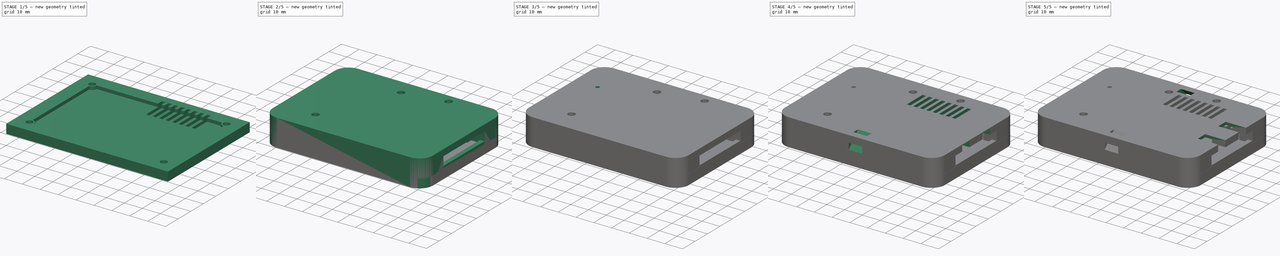
[diagram: build sequence overview — one tinted view per stage of 5, left to right]
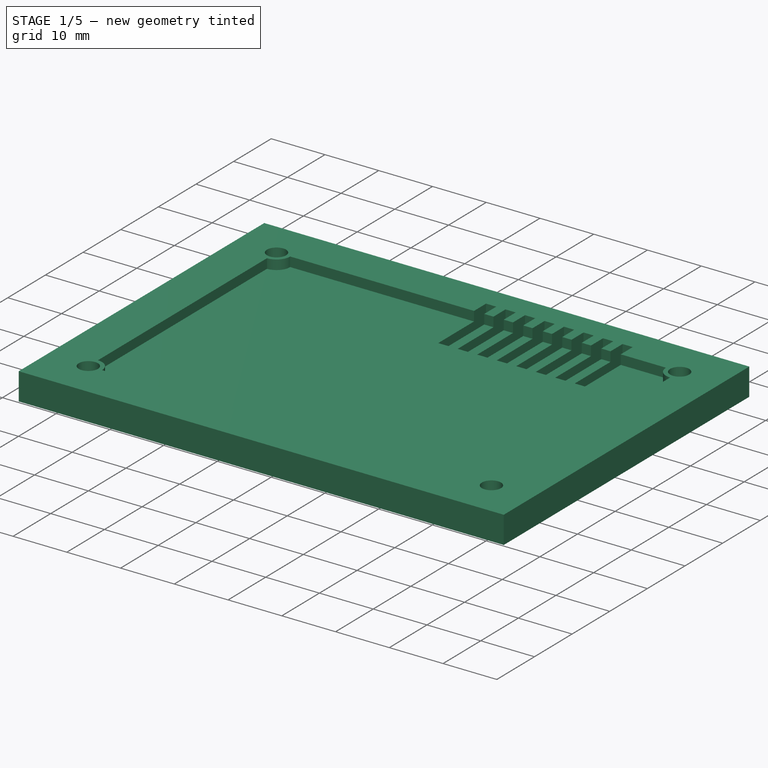
[diagram: stage 1 of 5 — iso view after this stage's code; geometry added in this stage tinted green]
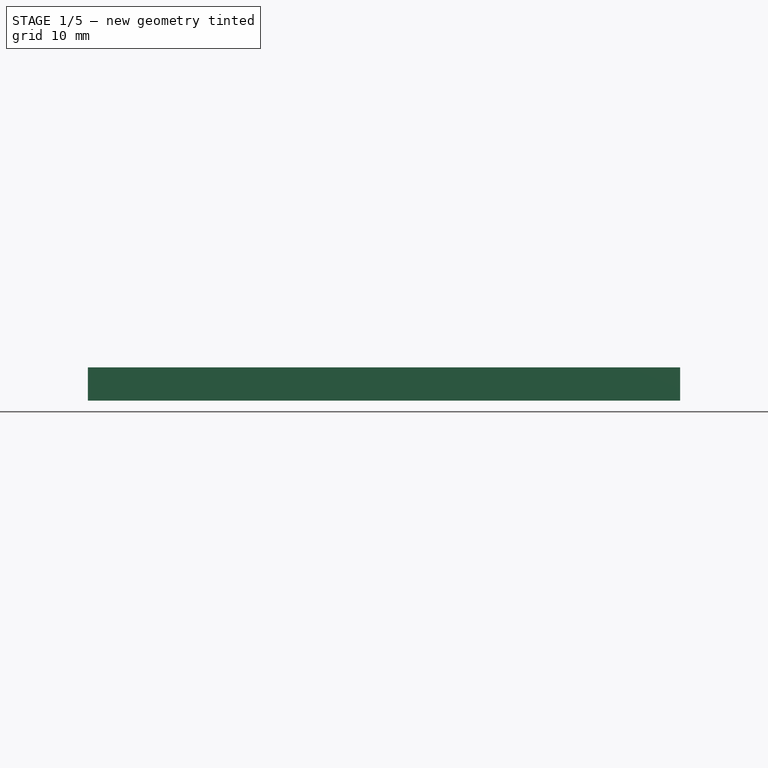
[diagram: stage 1 of 5 — front view after this stage's code; geometry added in this stage tinted green]
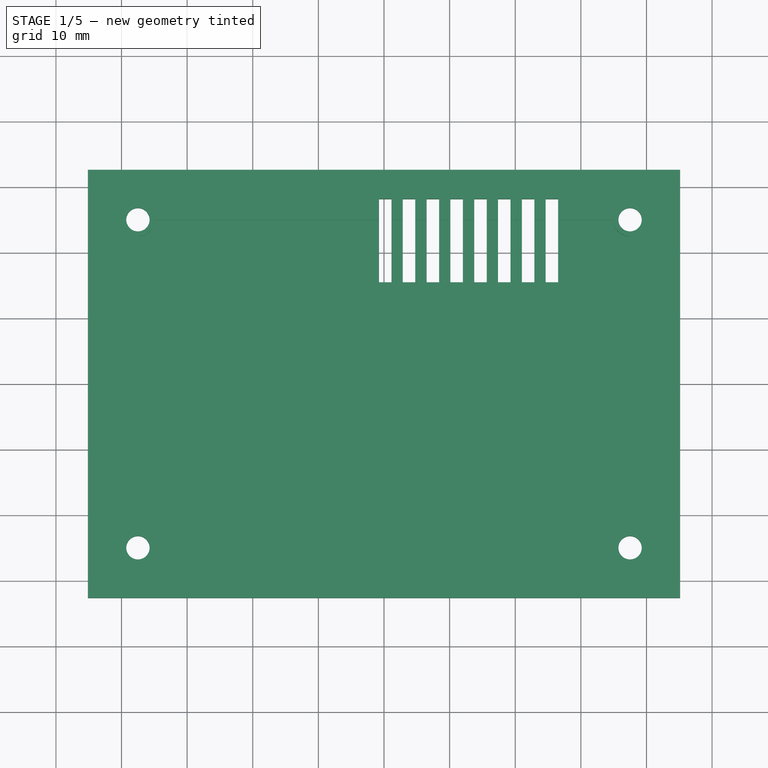
[diagram: stage 1 of 5 — top view after this stage's code; geometry added in this stage tinted green]
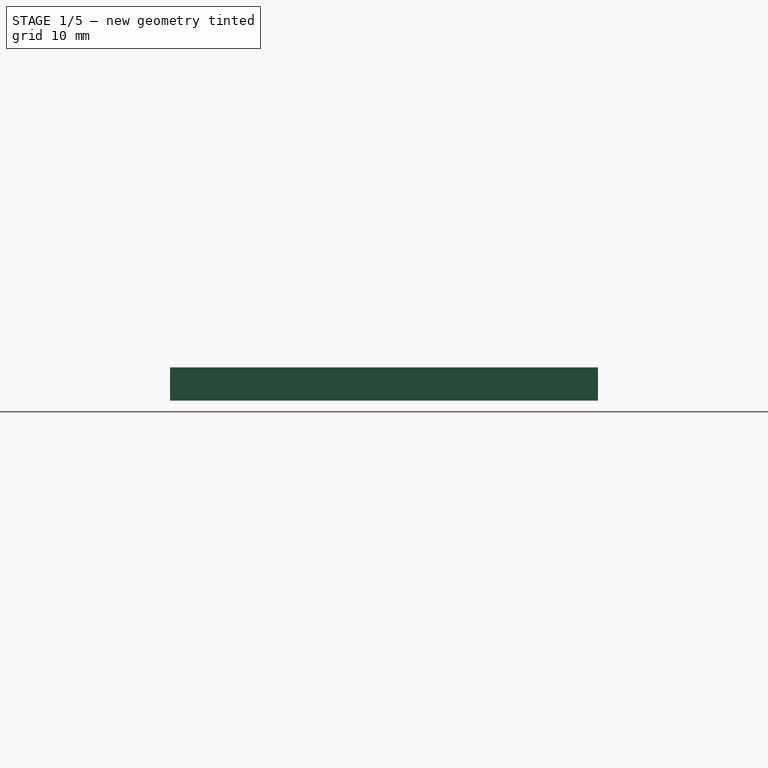
[diagram: stage 1 of 5 — right view after this stage's code; geometry added in this stage tinted green]
FCSTD DOCUMENT  (FreeCAD 1.0R39319 (Git))
Label: Case
License: All rights reserved
LicenseURL: http://en.wikipedia.org/wiki/All_rights_reserved
objects: Part::Feature×30, Sketcher::SketchObject×21, PartDesign::Pocket×15, PartDesign::Mirrored×7, PartDesign::Pad×6, PartDesign::MultiTransform×2, PartDesign::LinearPattern×2, PartDesign::Body×2, App::Part×1, PartDesign::Fillet×1
note: 162 computed .brp shape members not serialized (recipe doc carries the construction recipe); baked Part::Feature solids carry a one-line shape summary decoded from their .brp

FEATURE [Part::Feature] Part__Feature  label="SW_Push_1P1T_NO_CK_KMR2"
  Placement = pos=(150.35,-88.4,1.595) rot=(0,0,1;3.14159rad)
  shape: bbox 4.6 x 2.8 x 1.9 mm, 132 faces (baked)
FEATURE [Part::Feature] Part__Feature001  label="R_0805_2012Metric"
  Placement = pos=(183.6,-100,1.595) rot=(0,0,-1;1.5708rad)
  shape: bbox 1.2 x 2 x 0.45 mm, 26 faces (baked)
FEATURE [Part::Feature] Part__Feature002  label="R_0805_2012Metric001"
  Placement = pos=(191,-82.5,1.595) rot=(0,0,1;3.14159rad)
  shape: bbox 2 x 1.2 x 0.45 mm, 26 faces (baked)
FEATURE [Part::Feature] Part__Feature003  label="C_0805_2012Metric"
  Placement = pos=(147.95,-116.55,1.595) rot=(0,0,1;3.14159rad)
  shape: bbox 2 x 1.25 x 1.25 mm, 28 faces (baked)
FEATURE [Part::Feature] Part__Feature004  label="LED_0805_2012Metric"
  Placement = pos=(199.5,-72.5,1.595) rot=(0,0,1;0rad)
  shape: bbox 2 x 1.25 x 1.1 mm, 50 faces (baked)
FEATURE [Part::Feature] Part__Feature005  label="SMDIP-4_W9.53mm"
  Placement = pos=(191,-91,1.595) rot=(0,0,1;0rad)
  shape: bbox 9.32 x 4.93 x 3.68 mm, 84 faces (baked)
FEATURE [Part::Feature] Part__Feature006  label="SMDIP-4_W9.53mm001"
  Placement = pos=(191,-97.5,1.595) rot=(0,0,1;3.14159rad)
  shape: bbox 9.32 x 4.93 x 3.68 mm, 84 faces (baked)
FEATURE [Part::Feature] Part__Feature007  label="LED_0805_2012Metric001"
  Placement = pos=(157.5,-119.438,1.595) rot=(0,0,1;1.5708rad)
  shape: bbox 1.25 x 2 x 1.1 mm, 50 faces (baked)
FEATURE [Part::Feature] Part__Feature008  label="R_0805_2012Metric002"
  Placement = pos=(203.5,-72.5,1.595) rot=(0,0,1;0rad)
  shape: bbox 2 x 1.2 x 0.45 mm, 26 faces (baked)
FEATURE [Part::Feature] Part__Feature009  label="Molex Jr-Body"
  Placement = pos=(218.2,-91.85,1.595) rot=(0,0,-1;1.5708rad)
  shape: bbox 12.8 x 14 x 9.75 mm, 6 faces (baked)
FEATURE [Part::Feature] Part__Feature010  label="LED_0805_2012Metric002"
  Placement = pos=(176,-77,1.595) rot=(0,0,-1;1.5708rad)
  shape: bbox 1.25 x 2 x 1.1 mm, 50 faces (baked)
FEATURE [Part::Feature] Part__Feature011  label="R_0805_2012Metric003"
  Placement = pos=(149.5,-120,1.595) rot=(0,0,1;0rad)
  shape: bbox 2 x 1.2 x 0.45 mm, 26 faces (baked)
FEATURE [Part::Feature] Part__Feature012  label="CP_Elec_6.3x5.4"
  Placement = pos=(198.5,-81.5,1.595) rot=(0,0,1;3.14159rad)
  shape: bbox 8.606 x 8.603 x 5.4 mm, 41 faces (baked)
FEATURE [Part::Feature] Part__Feature013  label="C_0805_2012Metric001"
  Placement = pos=(187.5,-80,1.595) rot=(0,0,1;1.5708rad)
  shape: bbox 1.25 x 2 x 1.25 mm, 28 faces (baked)
FEATURE [Part::Feature] Part__Feature014  label="K7805M-1000R3-Body"
  Placement = pos=(209.5,-77.5,6.845) rot=(0,0,-1;1.5708rad)
  shape: bbox 8 x 11.6 x 14.5 mm, 25 faces (baked)
FEATURE [Part::Feature] Part__Feature015  label="C_0805_2012Metric002"
  Placement = pos=(180.5,-83,1.595) rot=(0,0,1;3.14159rad)
  shape: bbox 2 x 1.25 x 1.25 mm, 28 faces (baked)
FEATURE [Part::Feature] Part__Feature016  label="C_0805_2012Metric003"
  Placement = pos=(150.5,-108,1.595) rot=(0,0,1;0rad)
  shape: bbox 2 x 1.25 x 1.25 mm, 28 faces (baked)
FEATURE [Part::Feature] Part__Feature017  label="SW_Push_1P1T_NO_CK_KMR003"
  Placement = pos=(148,-112.5,1.595) rot=(0,0,1;1.5708rad)
  shape: bbox 2.8 x 4.6 x 1.9 mm, 132 faces (baked)
FEATURE [Part::Feature] Part__Feature018  label="SOT-223"
  Placement = pos=(182.5,-77.5,1.595) rot=(0,0,-1;1.5708rad)
  shape: bbox 6.5 x 7 x 1.7 mm, 75 faces (baked)
FEATURE [Part::Feature] Part__Feature019  label="D_SMA"
  Placement = pos=(170.5,-100.5,1.595) rot=(0,0,1;3.14159rad)
  shape: bbox 5 x 2.7 x 2.22 mm, 41 faces (baked)
FEATURE [Part::Feature] Part__Feature020  label="R_0805_2012Metric004"
  Placement = pos=(182.7,-89.8,1.595) rot=(0,0,1;3.14159rad)
  shape: bbox 2 x 1.2 x 0.45 mm, 26 faces (baked)
FEATURE [Part::Feature] Part__Feature021  label="R_0805_2012Metric005"
  Placement = pos=(191.088,-104.5,1.595) rot=(0,0,1;0rad)
  shape: bbox 2 x 1.2 x 0.45 mm, 26 faces (baked)
FEATURE [Part::Feature] Part__Feature022  label="R_0805_2012Metric006"
  Placement = pos=(154.35,-88.4,1.595) rot=(0,0,1;1.5708rad)
  shape: bbox 1.2 x 2 x 0.45 mm, 26 faces (baked)
FEATURE [Part::Feature] Part__Feature023  label="C_0805_2012Metric004"
  Placement = pos=(203.55,-77,1.595) rot=(0,0,1;3.14159rad)
  shape: bbox 2 x 1.25 x 1.25 mm, 28 faces (baked)
FEATURE [Part::Feature] Part__Feature024  label="R_0805_2012Metric007"
  Placement = pos=(176,-80.9125,1.595) rot=(0,0,-1;1.5708rad)
  shape: bbox 1.2 x 2 x 0.45 mm, 26 faces (baked)
FEATURE [Part::Feature] Part__Feature025  label="C_Elec_4x5.4"
  Placement = pos=(191,-74,1.595) rot=(0,0,1;3.14159rad)
  shape: bbox 5.738 x 5.462 x 5.4 mm, 41 faces, 2 solids (baked)
FEATURE [Part::Feature] Part__Feature026  label="R_0805_2012Metric008"
  Placement = pos=(199,-99,1.595) rot=(0,0,1;0rad)
  shape: bbox 2 x 1.2 x 0.45 mm, 26 faces (baked)
FEATURE [Part::Feature] Part__Feature027  label="Molex Jr-Body001"
  Placement = pos=(218.2,-107.855,1.595) rot=(0,0,-1;1.5708rad)
  shape: bbox 12.8 x 14 x 9.75 mm, 6 faces (baked)
FEATURE [Part::Feature] Part__Feature028  label="R_0805_2012Metric009"
  Placement = pos=(157.5,-115.438,1.595) rot=(0,0,1;1.5708rad)
  shape: bbox 1.2 x 2 x 0.45 mm, 26 faces (baked)
FEATURE [Part::Feature] Part__Feature029  label="AldervendAdapter_PCB"
  shape: bbox 85 x 60 x 1.51 mm, 42 faces (baked)
FEATURE [App::Part] AldervendAdapter_1  label="AldervendAdapter 1"
  Group = -> [Part__Feature,Part__Feature001,Part__Feature002,Part__Feature003,Part__Feature004,Part__Feature005,Part__Feature006,Part__Feature007,Part__Feature008,Part__Feature009,Part__Feature010,Part__Feature011,Part__Feature012,Part__Feature013,Part__Feature014,Part__Feature015,Part__Feature016,Part__Feature017,Part__Feature018,Part__Feature019,Part__Feature020,Part__Feature021,Part__Feature022,+7 more]
  Origin = -> Origin
  Placement = pos=(-182.372,99.949,0) rot=(0,0,1;0rad)
FEATURE [Sketcher::SketchObject] Sketch
  ArcFitTolerance = 1e-06
  AttachmentSupport = -> [XY_Plane001]
  FullyConstrained = true
  MakeInternals = false
  MapMode = 5
  sketch-geometry (18):
    g0: LineSegment StartX=-45.12 StartY=-32.62 StartZ=0 EndX=45.12 EndY=-32.62 EndZ=0
    g1: LineSegment StartX=45.12 StartY=-32.62 StartZ=0 EndX=45.12 EndY=32.62 EndZ=0
    g2: LineSegment StartX=45.12 StartY=32.62 StartZ=0 EndX=-45.12 EndY=32.62 EndZ=0
    g3: LineSegment StartX=-45.12 StartY=32.62 StartZ=0 EndX=-45.12 EndY=-32.62 EndZ=0
    g4: GeomPoint [constr] X=0 Y=0 Z=0
    g5: LineSegment [constr] StartX=-37.5 StartY=-25 StartZ=0 EndX=37.5 EndY=-25 EndZ=0
    g6: LineSegment [constr] StartX=37.5 StartY=-25 StartZ=0 EndX=37.5 EndY=25 EndZ=0
    g7: LineSegment [constr] StartX=37.5 StartY=25 StartZ=0 EndX=-37.5 EndY=25 EndZ=0
    g8: LineSegment [constr] StartX=-37.5 StartY=25 StartZ=0 EndX=-37.5 EndY=-25 EndZ=0
    g9: GeomPoint [constr] X=0 Y=0 Z=0
    g10: Circle CenterX=37.5 CenterY=25 CenterZ=0 NormalX=0 NormalY=0 NormalZ=1 AngleXU=0 Radius=1.778
    g11: Circle CenterX=-37.5 CenterY=25 CenterZ=0 NormalX=0 NormalY=0 NormalZ=1 AngleXU=0 Radius=1.778
    g12: Circle CenterX=-37.5 CenterY=-25 CenterZ=0 NormalX=0 NormalY=0 NormalZ=1 AngleXU=0 Radius=1.778
    g13: Circle CenterX=37.5 CenterY=-25 CenterZ=0 NormalX=0 NormalY=0 NormalZ=1 AngleXU=0 Radius=1.778
    g14: LineSegment [constr] StartX=37.5 StartY=25 StartZ=0 EndX=45.12 EndY=25 EndZ=0
    g15: LineSegment [constr] StartX=45.12 StartY=25 StartZ=0 EndX=45.12 EndY=32.62 EndZ=0
    g16: LineSegment [constr] StartX=45.12 StartY=32.62 StartZ=0 EndX=37.5 EndY=32.62 EndZ=0
    g17: LineSegment [constr] StartX=37.5 StartY=32.62 StartZ=0 EndX=37.5 EndY=25 EndZ=0
  constraints (42):
    c: Coincident(g0,g1)
    c: Coincident(g1,g2)
    c: Coincident(g2,g3)
    c: Coincident(g3,g0)
    c: Horizontal(g0)
    c: Horizontal(g2)
    c: Vertical(g1)
    c: Vertical(g3)
    c: Symmetric(g2,g0,g4)
    c: Coincident(g4,g-1)
    c: Coincident(g5,g6)
    c: Coincident(g6,g7)
    c: Coincident(g7,g8)
    c: Coincident(g8,g5)
    c: Horizontal(g5)
    c: Horizontal(g7)
    c: Vertical(g6)
    c: Vertical(g8)
    c: Symmetric(g7,g5,g9)
    c: Coincident(g9,g4)
    c: DistanceX(g7,g7) = 75
    c: DistanceY(g6,g6) = 50
    c: Coincident(g10,g6)
    c: Coincident(g11,g7)
    c: Coincident(g12,g5)
    c: Coincident(g13,g5)
    c: Diameter(g13) = 3.556
    c: Equal(g13,g10)
    c: Equal(g10,g11)
    c: Equal(g11,g12)
    c: Coincident(g14,g15)
    c: Coincident(g15,g16)
    c: Coincident(g16,g17)
    c: Coincident(g17,g14)
    c: Horizontal(g14)
    c: Horizontal(g16)
    c: Vertical(g15)
    c: Vertical(g17)
    c: Coincident(g14,g6)
    c: Coincident(g15,g1)
    c: Equal(g17,g14)
    c: Distance(g14,g14) = 7.62
FEATURE [PartDesign::Pad] Pad
  Direction = (0,0,1)
  Length = 5.08
  Length2 = 10
  Profile = -> Sketch
  ReferenceAxis = -> Sketch [N_Axis]
  Suppressed = false
  Type = 0
FEATURE [Sketcher::SketchObject] Sketch001
  ArcFitTolerance = 1e-06
  AttachmentSupport = -> [Pad]
  FullyConstrained = true
  MakeInternals = false
  MapMode = 5
  Placement = pos=(0,0,5.08) rot=(0,0,1;0rad)
  sketch-geometry (5):
    g0: ArcOfCircle CenterX=-37.5 CenterY=25 CenterZ=0 NormalX=0 NormalY=0 NormalZ=1 AngleXU=0 Radius=2.54 StartAngle=4.71239 EndAngle=6.28319
    g1: LineSegment StartX=-34.96 StartY=25 StartZ=0 EndX=0 EndY=25 EndZ=0
    g2: LineSegment StartX=0 StartY=0 StartZ=0 EndX=0 EndY=25 EndZ=0
    g3: LineSegment StartX=0 StartY=0 StartZ=0 EndX=-37.5 EndY=0 EndZ=0
    g4: LineSegment StartX=-37.5 StartY=0 StartZ=0 EndX=-37.5 EndY=22.46 EndZ=0
  constraints (15):
    c: Coincident(g1,g0)
    c: PointOnObject(g1,g-2)
    c: Horizontal(g1)
    c: Coincident(g2,g-1)
    c: Coincident(g2,g1)
    c: Coincident(g3,g2)
    c: PointOnObject(g3,g-1)
    c: Coincident(g4,g3)
    c: Coincident(g4,g0)
    c: Vertical(g4)
    c: Perpendicular(g0,g4)
    c: Perpendicular(g0,g1)
    c: DistanceY(g-1,g0) = 25
    c: DistanceX(g0,g-1) = 37.5
    c: Radius(g0) = 2.54
FEATURE [PartDesign::Pocket] Pocket
  BaseFeature = -> Pad
  Direction = (0,0,-1)
  Length = 1.778
  Length2 = 5
  Profile = -> Sketch001
  ReferenceAxis = -> Sketch001 [N_Axis]
  Suppressed = false
  Type = 0
FEATURE [PartDesign::Mirrored] Mirrored
  MirrorPlane = -> Sketch001 [V_Axis]
  Suppressed = false
  TransformMode = 0
FEATURE [PartDesign::Mirrored] Mirrored001
  MirrorPlane = -> Sketch001 [H_Axis]
  Suppressed = false
  TransformMode = 0
FEATURE [PartDesign::MultiTransform] MultiTransform
  BaseFeature = -> Pocket
  Originals = -> [Pocket]
  Suppressed = false
  TransformMode = 0
  Transformations = -> [Mirrored,Mirrored001]
FEATURE [Sketcher::SketchObject] Sketch002
  ArcFitTolerance = 1e-06
  AttachmentSupport = -> [MultiTransform]
  ExternalGeometry = -> [MultiTransform]
  FullyConstrained = true
  MakeInternals = false
  MapMode = 5
  Placement = pos=(0,0,0) rot=(1,0,0;3.14159rad)
  sketch-geometry (4):
    g0: Circle CenterX=37.5 CenterY=25 CenterZ=0 NormalX=0 NormalY=0 NormalZ=1 AngleXU=0 Radius=3.175
    g1: Circle CenterX=-37.5 CenterY=25 CenterZ=0 NormalX=0 NormalY=0 NormalZ=1 AngleXU=0 Radius=3.175
    g2: Circle CenterX=-37.5 CenterY=-25 CenterZ=0 NormalX=0 NormalY=0 NormalZ=1 AngleXU=0 Radius=3.175
    g3: Circle CenterX=37.5 CenterY=-25 CenterZ=0 NormalX=0 NormalY=0 NormalZ=1 AngleXU=0 Radius=3.175
  constraints (8):
    c: Coincident(g0,g-3)
    c: Coincident(g1,g-4)
    c: Coincident(g2,g-5)
    c: Coincident(g3,g-6)
    c: Equal(g3,g2)
    c: Equal(g2,g1)
    c: Equal(g1,g0)
    c: Diameter(g3) = 6.35
FEATURE [PartDesign::Pocket] Pocket001
  BaseFeature = -> MultiTransform
  Direction = (0,0,1)
  Length = 2.286
  Length2 = 5
  Profile = -> Sketch002
  ReferenceAxis = -> Sketch002 [N_Axis]
  Suppressed = false
  Type = 0
FEATURE [Sketcher::SketchObject] Sketch003
  ArcFitTolerance = 1e-06
  AttachmentSupport = -> [Pocket001]
  FullyConstrained = true
  MakeInternals = false
  MapMode = 5
  Placement = pos=(0,0,5.08) rot=(0,0,1;0rad)
  sketch-geometry (4):
    g0: LineSegment StartX=26.543 StartY=28.194 StartZ=0 EndX=24.638 EndY=28.194 EndZ=0
    g1: LineSegment StartX=24.638 StartY=28.194 StartZ=0 EndX=24.638 EndY=15.494 EndZ=0
    g2: LineSegment StartX=24.638 StartY=15.494 StartZ=0 EndX=26.543 EndY=15.494 EndZ=0
    g3: LineSegment StartX=26.543 StartY=15.494 StartZ=0 EndX=26.543 EndY=28.194 EndZ=0
  constraints (12):
    c: Coincident(g0,g1)
    c: Coincident(g1,g2)
    c: Coincident(g2,g3)
    c: Coincident(g3,g0)
    c: Horizontal(g0)
    c: Horizontal(g2)
    c: Vertical(g1)
    c: Vertical(g3)
    c: DistanceX(g0,g0) = 1.905
    c: DistanceY(g3,g3) = 12.7
    c: DistanceX(g-1,g0) = 24.638
    c: DistanceY(g-1,g0) = 28.194
FEATURE [PartDesign::Pocket] Pocket002
  BaseFeature = -> Pocket001
  Direction = (0,0,-1)
  Length = 5
  Length2 = 5
  Profile = -> Sketch003
  ReferenceAxis = -> Sketch003 [N_Axis]
  Suppressed = false
  Type = 1
FEATURE [PartDesign::LinearPattern] LinearPattern
  BaseFeature = -> Pocket002
  Direction = -> Sketch003 [H_Axis]
  Length = 25.4
  Mode = 0
  Occurrences = 8
  Offset = 3.62857
  Originals = -> [Pocket002]
  Reversed = true
  Suppressed = false
  TransformMode = 0
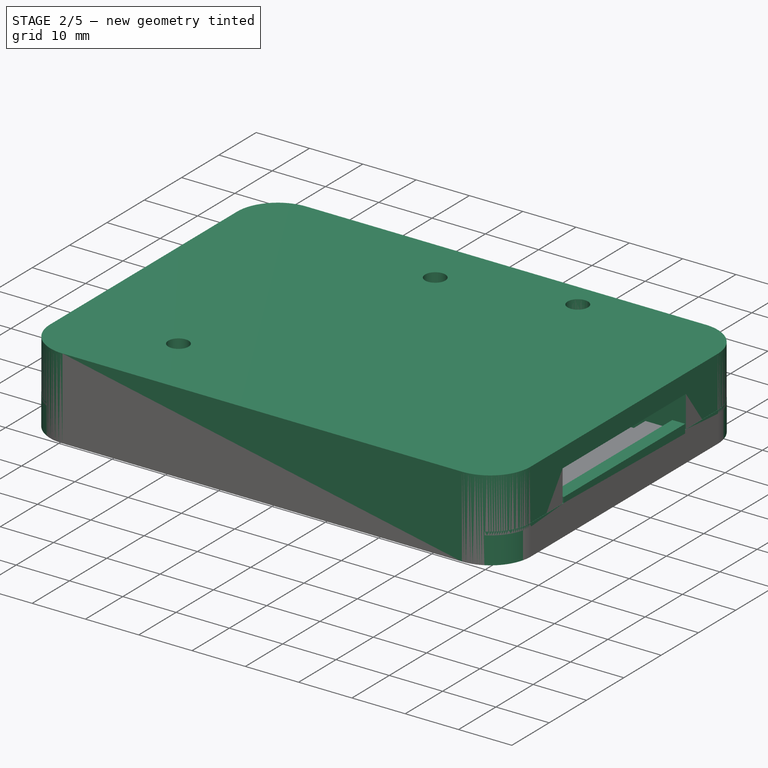
[diagram: stage 2 of 5 — iso view after this stage's code; geometry added in this stage tinted green]
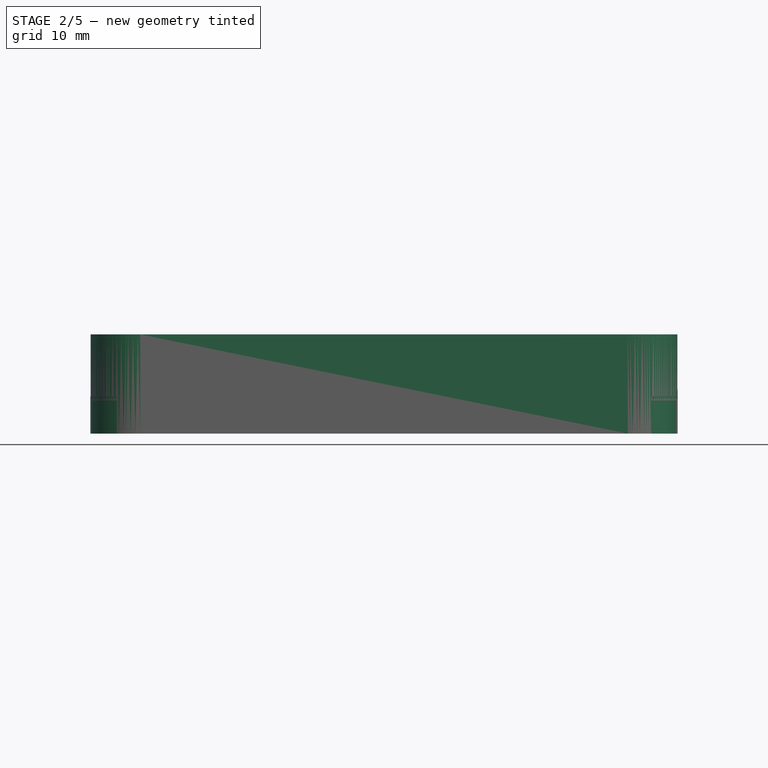
[diagram: stage 2 of 5 — front view after this stage's code; geometry added in this stage tinted green]
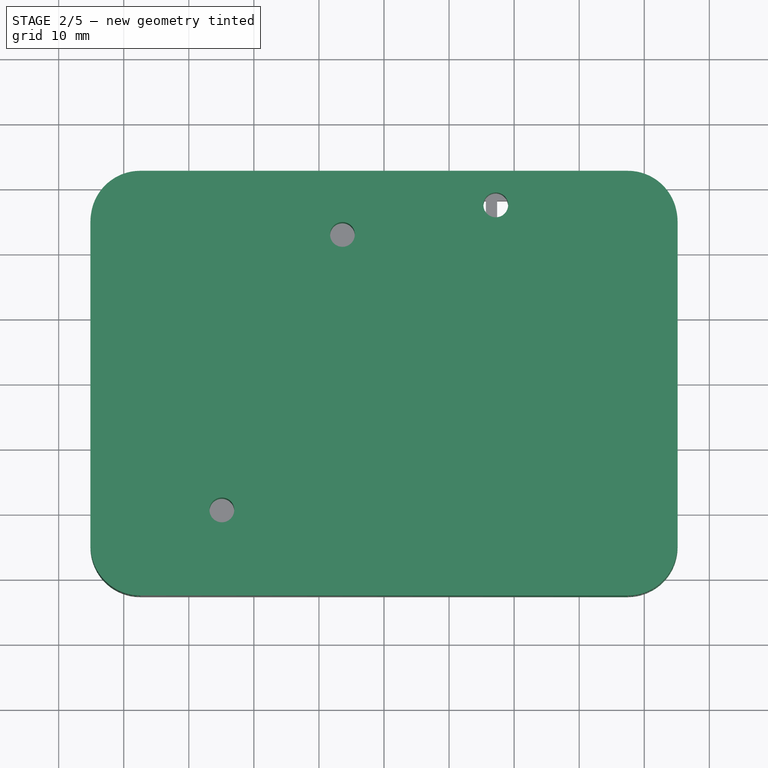
[diagram: stage 2 of 5 — top view after this stage's code; geometry added in this stage tinted green]
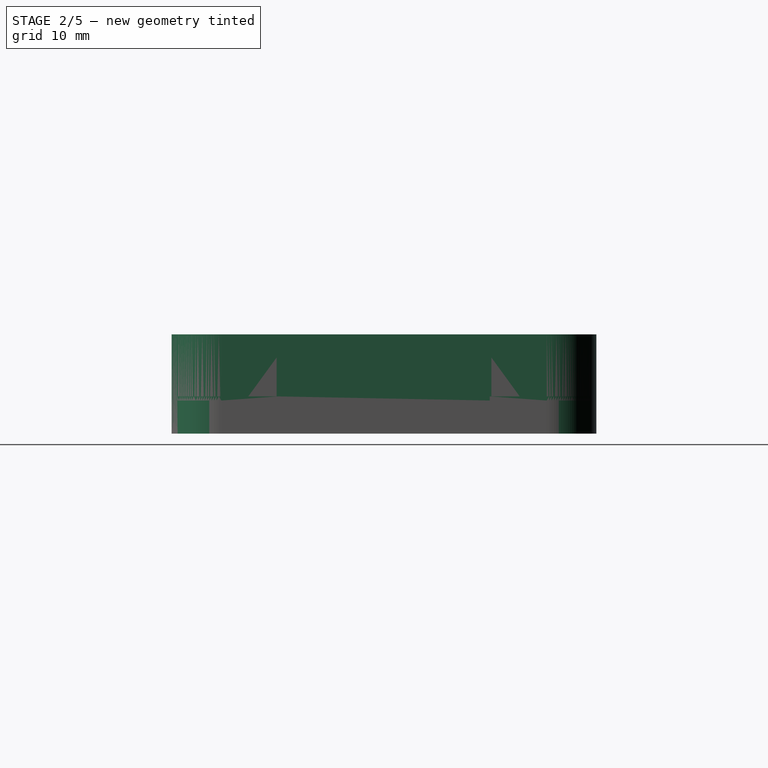
[diagram: stage 2 of 5 — right view after this stage's code; geometry added in this stage tinted green]
FEATURE [PartDesign::Fillet] Fillet
  Base = -> LinearPattern [Edge2,Edge1,Edge5,Edge8]
  BaseFeature = -> LinearPattern
  Radius = 7.62
  SupportTransform = false
  Suppressed = false
  UseAllEdges = false
FEATURE [Sketcher::SketchObject] Sketch004
  ArcFitTolerance = 1e-06
  AttachmentSupport = -> [Fillet]
  ExternalGeometry = -> [Fillet]
  FullyConstrained = true
  MakeInternals = false
  MapMode = 5
  Placement = pos=(0,0,5.08) rot=(0,0,1;0rad)
  sketch-geometry (20):
    g0: LineSegment StartX=-37.5 StartY=-32.62 StartZ=0 EndX=37.5 EndY=-32.62 EndZ=0
    g1: LineSegment StartX=45.12 StartY=-25 StartZ=0 EndX=45.12 EndY=25 EndZ=0
    g2: LineSegment StartX=37.5 StartY=32.62 StartZ=0 EndX=-37.5 EndY=32.62 EndZ=0
    g3: LineSegment StartX=-45.12 StartY=25 StartZ=0 EndX=-45.12 EndY=-25 EndZ=0
    g4: ArcOfCircle CenterX=-37.5 CenterY=-25 CenterZ=0 NormalX=0 NormalY=0 NormalZ=1 AngleXU=0 Radius=7.62 StartAngle=3.14159 EndAngle=4.71239
    g5: ArcOfCircle CenterX=37.5 CenterY=-25 CenterZ=0 NormalX=0 NormalY=0 NormalZ=1 AngleXU=0 Radius=7.62 StartAngle=4.71239 EndAngle=6.28319
    g6: ArcOfCircle CenterX=37.5 CenterY=25 CenterZ=0 NormalX=0 NormalY=0 NormalZ=1 AngleXU=0 Radius=7.62 StartAngle=0 EndAngle=1.5708
    g7: ArcOfCircle CenterX=-37.5 CenterY=25 CenterZ=0 NormalX=0 NormalY=0 NormalZ=1 AngleXU=0 Radius=7.62 StartAngle=1.5708 EndAngle=3.14159
    g8: GeomPoint [constr] X=-45.12 Y=-32.62 Z=0
    g9: GeomPoint [constr] X=45.12 Y=32.62 Z=0
    g10: LineSegment StartX=-37.5 StartY=-31.35 StartZ=0 EndX=37.5 EndY=-31.35 EndZ=0
    g11: LineSegment StartX=43.85 StartY=-25 StartZ=0 EndX=43.85 EndY=25 EndZ=0
    g12: LineSegment StartX=37.5 StartY=31.35 StartZ=0 EndX=-37.5 EndY=31.35 EndZ=0
    g13: LineSegment StartX=-43.85 StartY=25 StartZ=0 EndX=-43.85 EndY=-25 EndZ=0
    g14: ArcOfCircle CenterX=-37.5 CenterY=-25 CenterZ=0 NormalX=0 NormalY=0 NormalZ=1 AngleXU=0 Radius=6.35 StartAngle=3.14159 EndAngle=4.71239
    g15: ArcOfCircle CenterX=37.5 CenterY=-25 CenterZ=0 NormalX=0 NormalY=0 NormalZ=1 AngleXU=0 Radius=6.35 StartAngle=4.71239 EndAngle=6.28319
    g16: ArcOfCircle CenterX=37.5 CenterY=25 CenterZ=0 NormalX=0 NormalY=0 NormalZ=1 AngleXU=0 Radius=6.35 StartAngle=0 EndAngle=1.5708
    g17: ArcOfCircle CenterX=-37.5 CenterY=25 CenterZ=0 NormalX=0 NormalY=0 NormalZ=1 AngleXU=0 Radius=6.35 StartAngle=1.5708 EndAngle=3.14159
    g18: GeomPoint [constr] X=-43.85 Y=-31.35 Z=0
    g19: GeomPoint [constr] X=43.85 Y=31.35 Z=0
  constraints (43):
    c: Tangent(g0,g4) = -1.5708
    c: Tangent(g0,g5) = -1.5708
    c: Tangent(g1,g5) = -1.5708
    c: Tangent(g1,g6) = -1.5708
    c: Tangent(g2,g6) = -1.5708
    c: Tangent(g2,g7) = -1.5708
    c: Tangent(g3,g7) = -1.5708
    c: Tangent(g3,g4) = -1.5708
    c: Horizontal(g2)
    c: Vertical(g1)
    c: Vertical(g3)
    c: Equal(g4,g5)
    c: Equal(g5,g6)
    c: Equal(g6,g7)
    c: PointOnObject(g8,g0)
    c: PointOnObject(g8,g3)
    c: PointOnObject(g9,g1)
    c: PointOnObject(g9,g2)
    c: Tangent(g10,g14) = -1.5708
    c: Tangent(g10,g15) = -1.5708
    c: Tangent(g11,g15) = -1.5708
    c: Tangent(g11,g16) = -1.5708
    c: Tangent(g12,g16) = -1.5708
    c: Tangent(g12,g17) = -1.5708
    c: Tangent(g13,g17) = -1.5708
    c: Tangent(g13,g14) = -1.5708
    c: Horizontal(g10)
    c: Horizontal(g12)
    c: Vertical(g11)
    c: Vertical(g13)
    c: Equal(g14,g15)
    c: Equal(g15,g16)
    c: Equal(g16,g17)
    c: PointOnObject(g18,g10)
    c: PointOnObject(g18,g13)
    c: PointOnObject(g19,g11)
    c: PointOnObject(g19,g12)
    c: Coincident(g6,g-3)
    c: Coincident(g16,g6)
    c: Coincident(g4,g-7)
    c: Coincident(g14,g4)
    c: Coincident(g0,g-7)
    c: DistanceY(g0,g10) = 1.27
FEATURE [PartDesign::Pad] Pad001
  BaseFeature = -> Fillet
  Direction = (0,0,1)
  Length = 0.635
  Length2 = 10
  Profile = -> Sketch004
  ReferenceAxis = -> Sketch004 [N_Axis]
  Suppressed = false
  Type = 0
FEATURE [Sketcher::SketchObject] Sketch005
  ArcFitTolerance = 1e-06
  AttachmentSupport = -> [XY_Plane002]
  FullyConstrained = true
  MakeInternals = false
  MapMode = 5
  sketch-geometry (10):
    g0: LineSegment StartX=-37.465 StartY=-32.639 StartZ=0 EndX=37.465 EndY=-32.639 EndZ=0
    g1: LineSegment StartX=45.085 StartY=-25.019 StartZ=0 EndX=45.085 EndY=25.019 EndZ=0
    g2: LineSegment StartX=37.465 StartY=32.639 StartZ=0 EndX=-37.465 EndY=32.639 EndZ=0
    g3: LineSegment StartX=-45.085 StartY=25.019 StartZ=0 EndX=-45.085 EndY=-25.019 EndZ=0
    g4: ArcOfCircle CenterX=-37.465 CenterY=-25.019 CenterZ=0 NormalX=0 NormalY=0 NormalZ=1 AngleXU=0 Radius=7.62 StartAngle=3.14159 EndAngle=4.71239
    g5: ArcOfCircle CenterX=37.465 CenterY=-25.019 CenterZ=0 NormalX=0 NormalY=0 NormalZ=1 AngleXU=0 Radius=7.62 StartAngle=4.71239 EndAngle=6.28319
    g6: ArcOfCircle CenterX=37.465 CenterY=25.019 CenterZ=0 NormalX=0 NormalY=0 NormalZ=1 AngleXU=0 Radius=7.62 StartAngle=-1.8e-15 EndAngle=1.5708
    g7: ArcOfCircle CenterX=-37.465 CenterY=25.019 CenterZ=0 NormalX=0 NormalY=0 NormalZ=1 AngleXU=0 Radius=7.62 StartAngle=1.5708 EndAngle=3.14159
    g8: GeomPoint [constr] X=-45.085 Y=-32.639 Z=0
    g9: GeomPoint [constr] X=45.085 Y=32.639 Z=0
  constraints (23):
    c: Tangent(g0,g4) = -1.5708
    c: Tangent(g0,g5) = -1.5708
    c: Tangent(g1,g5) = -1.5708
    c: Tangent(g1,g6) = -1.5708
    c: Tangent(g2,g6) = -1.5708
    c: Tangent(g2,g7) = -1.5708
    c: Tangent(g3,g7) = -1.5708
    c: Tangent(g3,g4) = -1.5708
    c: Horizontal(g0)
    c: Horizontal(g2)
    c: Vertical(g1)
    c: Vertical(g3)
    c: Equal(g4,g5)
    c: Equal(g5,g6)
    c: Equal(g6,g7)
    c: PointOnObject(g8,g0)
    c: PointOnObject(g8,g3)
    c: PointOnObject(g9,g1)
    c: PointOnObject(g9,g2)
    c: Distance(g0,g2) = 65.278
    c: Symmetric(g4,g6,g-1)
    c: Distance(g1,g3) = 90.17
    c: Radius(g5) = 7.62
FEATURE [PartDesign::Pad] Pad002
  Direction = (0,0,1)
  Length = 15.24
  Length2 = 10
  Profile = -> Sketch005
  ReferenceAxis = -> Sketch005 [N_Axis]
  Suppressed = false
  Type = 0
FEATURE [Sketcher::SketchObject] Sketch006
  ArcFitTolerance = 1e-06
  AttachmentSupport = -> [Pad002]
  FullyConstrained = true
  MakeInternals = false
  MapMode = 5
  Placement = pos=(45.085,0,0) rot=(0.57735,0.57735,0.57735;2.0944rad)
  sketch-geometry (4):
    g0: LineSegment StartX=-16.51 StartY=0 StartZ=0 EndX=16.51 EndY=0 EndZ=0
    g1: LineSegment StartX=16.51 StartY=0 StartZ=0 EndX=16.51 EndY=11.684 EndZ=0
    g2: LineSegment StartX=16.51 StartY=11.684 StartZ=0 EndX=-16.51 EndY=11.684 EndZ=0
    g3: LineSegment StartX=-16.51 StartY=11.684 StartZ=0 EndX=-16.51 EndY=0 EndZ=0
  constraints (11):
    c: Coincident(g0,g1)
    c: Coincident(g1,g2)
    c: Coincident(g2,g3)
    c: Coincident(g3,g0)
    c: Horizontal(g0)
    c: Vertical(g1)
    c: Vertical(g3)
    c: PointOnObject(g0,g-1)
    c: Symmetric(g1,g2,g-2)
    c: DistanceX(g2,g2) = 33.02
    c: DistanceY(g1,g1) = 11.684
FEATURE [PartDesign::Pocket] Pocket003
  BaseFeature = -> Pad002
  Direction = (-1,0,0)
  Length = 50.8
  Length2 = 5
  Profile = -> Sketch006
  ReferenceAxis = -> Sketch006 [N_Axis]
  Suppressed = false
  Type = 0
FEATURE [Sketcher::SketchObject] Sketch007
  ArcFitTolerance = 1e-06
  AttachmentSupport = -> [Pocket003]
  FullyConstrained = false
  MakeInternals = false
  MapMode = 5
  Placement = pos=(0,0,15.24) rot=(0,0,1;0rad)
  sketch-geometry (3):
    g0: Circle CenterX=-24.921 CenterY=-19.4844 CenterZ=0 NormalX=0 NormalY=0 NormalZ=1 AngleXU=0 Radius=1.905
    g1: Circle CenterX=-6.38982 CenterY=22.8588 CenterZ=0 NormalX=0 NormalY=0 NormalZ=1 AngleXU=0 Radius=1.905
    g2: Circle CenterX=17.1758 CenterY=27.3995 CenterZ=0 NormalX=0 NormalY=0 NormalZ=1 AngleXU=0 Radius=1.905
  constraints (3):
    c: Equal(g2,g1)
    c: Equal(g1,g0)
    c: Diameter(g0) = 3.81
FEATURE [PartDesign::Pocket] Pocket004
  BaseFeature = -> Pocket003
  Direction = (0,0,-1)
  Length = 5
  Length2 = 5
  Profile = -> Sketch007
  ReferenceAxis = -> Sketch007 [N_Axis]
  Suppressed = false
  Type = 1
FEATURE [PartDesign::Body] Body001  label="Top"
  AllowCompound = false
  Group = -> [Sketch005,Pad002,Sketch006,Pocket003,Sketch007,Pocket004,Sketch008,Pocket005,Sketch009,Pad003,Sketch010,Pocket006,MultiTransform001,Mirrored002,Mirrored003,Sketch011,Pocket007,Sketch012,Pad004,Sketch013,Pocket008,LinearPattern001,Sketch014,Pocket009,Mirrored004,Sketch015,Pocket010,Mirrored005,Sketch016,Pocket011,Sketch017,Pocket012,Sketch018,Pocket013,Sketch019,Pocket014,Mirrored006]
  Origin = -> Origin002
  Placement = pos=(0,0,0.635) rot=(0,0,1;0rad)
  Tip = -> Mirrored006
FEATURE [Sketcher::SketchObject] Sketch020
  ArcFitTolerance = 1e-06
  AttachmentSupport = -> [Pad001]
  ExternalGeometry = -> [Pad001]
  FullyConstrained = true
  MakeInternals = false
  MapMode = 5
  Placement = pos=(0,0,5.08) rot=(0,0,1;0rad)
  sketch-geometry (4):
    g0: LineSegment StartX=45.12 StartY=16.256 StartZ=0 EndX=42.707 EndY=16.256 EndZ=0
    g1: LineSegment StartX=42.707 StartY=16.256 StartZ=0 EndX=42.707 EndY=-16.256 EndZ=0
    g2: LineSegment StartX=42.707 StartY=-16.256 StartZ=0 EndX=45.12 EndY=-16.256 EndZ=0
    g3: LineSegment StartX=45.12 StartY=-16.256 StartZ=0 EndX=45.12 EndY=16.256 EndZ=0
  constraints (11):
    c: Coincident(g0,g1)
    c: Coincident(g1,g2)
    c: Coincident(g2,g3)
    c: Coincident(g3,g0)
    c: Horizontal(g0)
    c: Horizontal(g2)
    c: Vertical(g1)
    c: PointOnObject(g0,g-3)
    c: Symmetric(g2,g0,g-1)
    c: DistanceY(g1,g1) = 32.512
    c: Distance(g0,g0) = 2.413
FEATURE [PartDesign::Pad] Pad005
  BaseFeature = -> Pad001
  Direction = (0,0,1)
  Length = 1.651
  Length2 = 10
  Profile = -> Sketch020
  ReferenceAxis = -> Sketch020 [N_Axis]
  Suppressed = false
  Type = 0
FEATURE [PartDesign::Body] Body  label="Bottom"
  AllowCompound = false
  Group = -> [Sketch,Pad,Sketch001,Pocket,MultiTransform,Mirrored,Mirrored001,Sketch002,Pocket001,Sketch003,Pocket002,LinearPattern,Fillet,Sketch004,Pad001,Sketch020,Pad005]
  Origin = -> Origin001
  Placement = pos=(0,0,-5.207) rot=(0,0,1;0rad)
  Tip = -> Pad005
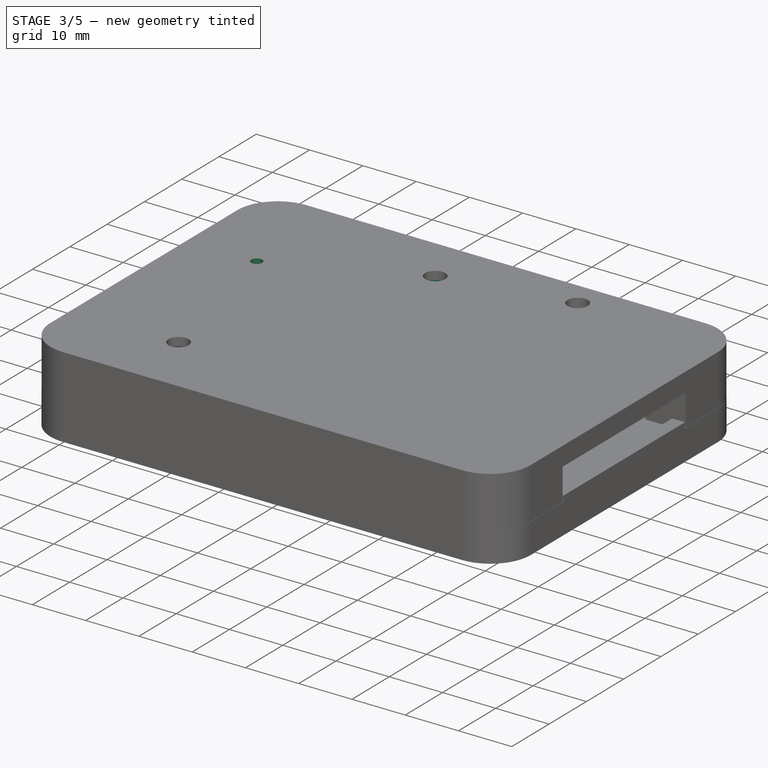
[diagram: stage 3 of 5 — iso view after this stage's code; geometry added in this stage tinted green]
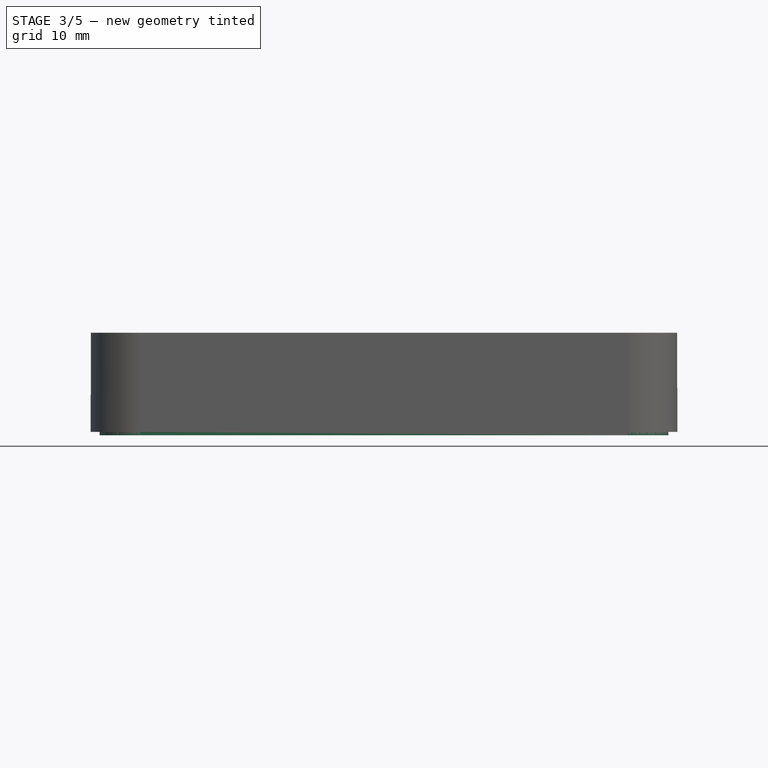
[diagram: stage 3 of 5 — front view after this stage's code; geometry added in this stage tinted green]
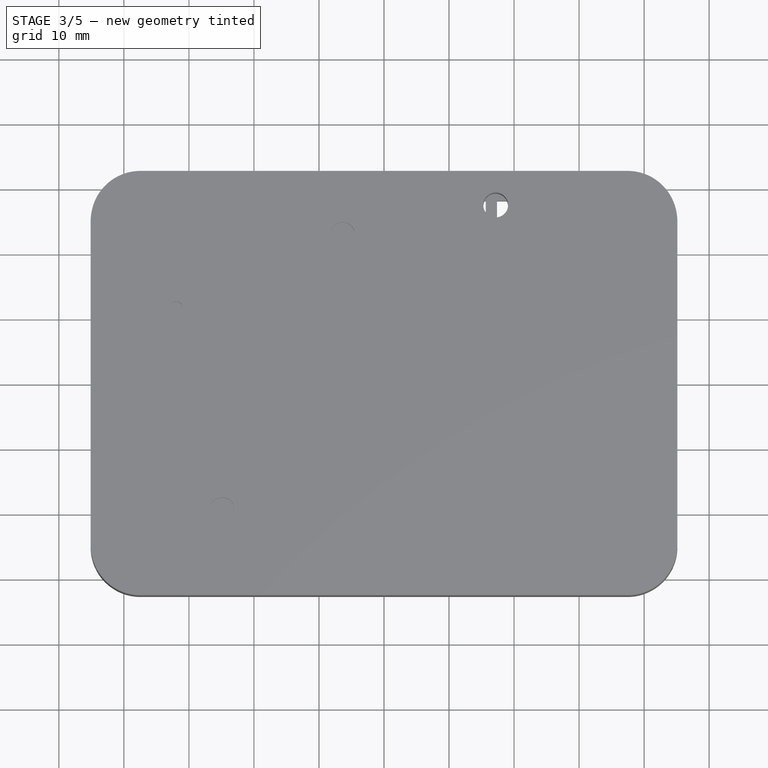
[diagram: stage 3 of 5 — top view after this stage's code; geometry added in this stage tinted green]
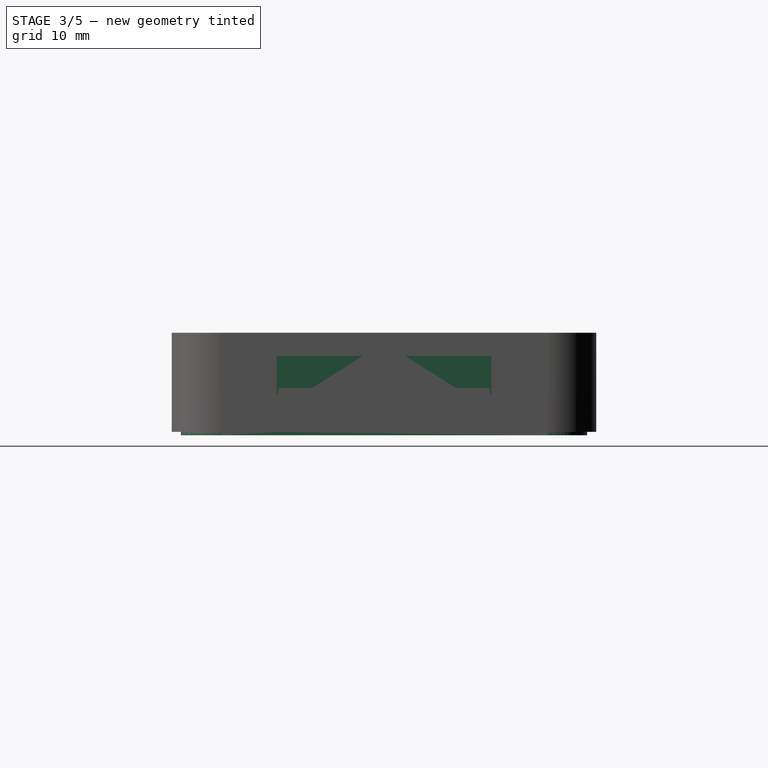
[diagram: stage 3 of 5 — right view after this stage's code; geometry added in this stage tinted green]
FEATURE [Sketcher::SketchObject] Sketch008
  ArcFitTolerance = 1e-06
  AttachmentSupport = -> [Pocket004]
  FullyConstrained = true
  MakeInternals = false
  MapMode = 5
  Placement = pos=(0,0,0) rot=(1,0,0;3.14159rad)
  sketch-geometry (9):
    g0: LineSegment [constr] StartX=-37.5 StartY=-25 StartZ=0 EndX=37.5 EndY=-25 EndZ=0
    g1: LineSegment [constr] StartX=37.5 StartY=-25 StartZ=0 EndX=37.5 EndY=25 EndZ=0
    g2: LineSegment [constr] StartX=37.5 StartY=25 StartZ=0 EndX=-37.5 EndY=25 EndZ=0
    g3: LineSegment [constr] StartX=-37.5 StartY=25 StartZ=0 EndX=-37.5 EndY=-25 EndZ=0
    g4: GeomPoint [constr] X=0 Y=0 Z=0
    g5: Circle CenterX=37.5 CenterY=25 CenterZ=0 NormalX=0 NormalY=0 NormalZ=1 AngleXU=0 Radius=1.397
    g6: Circle CenterX=37.5 CenterY=-25 CenterZ=0 NormalX=0 NormalY=0 NormalZ=1 AngleXU=0 Radius=1.397
    g7: Circle CenterX=-37.5 CenterY=-25 CenterZ=0 NormalX=0 NormalY=0 NormalZ=1 AngleXU=0 Radius=1.397
    g8: Circle CenterX=-37.5 CenterY=25 CenterZ=0 NormalX=0 NormalY=0 NormalZ=1 AngleXU=0 Radius=1.397
  constraints (20):
    c: Coincident(g0,g1)
    c: Coincident(g1,g2)
    c: Coincident(g2,g3)
    c: Coincident(g3,g0)
    c: Horizontal(g0)
    c: Horizontal(g2)
    c: Vertical(g1)
    c: Vertical(g3)
    c: Symmetric(g2,g0,g4)
    c: Coincident(g4,g-1)
    c: DistanceX(g2,g2) = 75
    c: DistanceY(g1,g1) = 50
    c: Coincident(g5,g1)
    c: Coincident(g6,g0)
    c: Coincident(g7,g0)
    c: Coincident(g8,g2)
    c: Equal(g8,g5)
    c: Equal(g5,g6)
    c: Equal(g6,g7)
    c: Diameter(g7) = 2.794
FEATURE [PartDesign::Pocket] Pocket005
  BaseFeature = -> Pocket004
  Direction = (0,0,1)
  Length = 12.7
  Length2 = 5
  Profile = -> Sketch008
  ReferenceAxis = -> Sketch008 [N_Axis]
  Suppressed = false
  Type = 0
FEATURE [Sketcher::SketchObject] Sketch009
  ArcFitTolerance = 1e-06
  AttachmentSupport = -> [Pocket005]
  ExternalGeometry = -> [Pocket005]
  FullyConstrained = true
  MakeInternals = false
  MapMode = 5
  Placement = pos=(0,0,0) rot=(1,0,0;3.14159rad)
  sketch-geometry (20):
    g0: LineSegment StartX=-37.5 StartY=-31.242 StartZ=0 EndX=37.5 EndY=-31.242 EndZ=0
    g1: LineSegment StartX=43.742 StartY=-25 StartZ=0 EndX=43.742 EndY=25 EndZ=0
    g2: LineSegment StartX=37.5 StartY=31.242 StartZ=0 EndX=-37.5 EndY=31.242 EndZ=0
    g3: LineSegment StartX=-43.742 StartY=25 StartZ=0 EndX=-43.742 EndY=-25 EndZ=0
    g4: ArcOfCircle CenterX=-37.5 CenterY=-25 CenterZ=0 NormalX=0 NormalY=0 NormalZ=1 AngleXU=0 Radius=6.242 StartAngle=3.14159 EndAngle=4.71239
    g5: ArcOfCircle CenterX=37.5 CenterY=-25 CenterZ=0 NormalX=0 NormalY=0 NormalZ=1 AngleXU=0 Radius=6.242 StartAngle=4.71239 EndAngle=6.28319
    g6: ArcOfCircle CenterX=37.5 CenterY=25 CenterZ=0 NormalX=0 NormalY=0 NormalZ=1 AngleXU=0 Radius=6.242 StartAngle=2e-16 EndAngle=1.5708
    g7: ArcOfCircle CenterX=-37.5 CenterY=25 CenterZ=0 NormalX=0 NormalY=0 NormalZ=1 AngleXU=0 Radius=6.242 StartAngle=1.5708 EndAngle=3.14159
    g8: GeomPoint [constr] X=-43.742 Y=-31.242 Z=0
    g9: GeomPoint [constr] X=43.742 Y=31.242 Z=0
    g10: LineSegment StartX=-37.5 StartY=-30.48 StartZ=0 EndX=37.5 EndY=-30.48 EndZ=0
    g11: LineSegment StartX=42.98 StartY=-25 StartZ=0 EndX=42.98 EndY=25 EndZ=0
    g12: LineSegment StartX=37.5 StartY=30.48 StartZ=0 EndX=-37.5 EndY=30.48 EndZ=0
    g13: LineSegment StartX=-42.98 StartY=25 StartZ=0 EndX=-42.98 EndY=-25 EndZ=0
    g14: ArcOfCircle CenterX=-37.5 CenterY=-25 CenterZ=0 NormalX=0 NormalY=0 NormalZ=1 AngleXU=0 Radius=5.48 StartAngle=3.14159 EndAngle=4.71239
    g15: ArcOfCircle CenterX=37.5 CenterY=-25 CenterZ=0 NormalX=0 NormalY=0 NormalZ=1 AngleXU=0 Radius=5.48 StartAngle=4.71239 EndAngle=6.28319
    g16: ArcOfCircle CenterX=37.5 CenterY=25 CenterZ=0 NormalX=0 NormalY=0 NormalZ=1 AngleXU=0 Radius=5.48 StartAngle=1e-16 EndAngle=1.5708
    g17: ArcOfCircle CenterX=-37.5 CenterY=25 CenterZ=0 NormalX=0 NormalY=0 NormalZ=1 AngleXU=0 Radius=5.48 StartAngle=1.5708 EndAngle=3.14159
    g18: GeomPoint [constr] X=-42.98 Y=-30.48 Z=0
    g19: GeomPoint [constr] X=42.98 Y=30.48 Z=0
  constraints (44):
    c: Tangent(g0,g4) = -1.5708
    c: Tangent(g0,g5) = -1.5708
    c: Tangent(g1,g5) = -1.5708
    c: Tangent(g1,g6) = -1.5708
    c: Tangent(g2,g6) = -1.5708
    c: Tangent(g2,g7) = -1.5708
    c: Tangent(g3,g7) = -1.5708
    c: Tangent(g3,g4) = -1.5708
    c: Horizontal(g0)
    c: Horizontal(g2)
    c: Vertical(g1)
    c: Vertical(g3)
    c: Equal(g4,g5)
    c: Equal(g5,g6)
    c: Equal(g6,g7)
    c: PointOnObject(g8,g0)
    c: PointOnObject(g8,g3)
    c: PointOnObject(g9,g1)
    c: PointOnObject(g9,g2)
    c: Tangent(g10,g14) = -1.5708
    c: Tangent(g10,g15) = -1.5708
    c: Tangent(g11,g15) = -1.5708
    c: Tangent(g11,g16) = -1.5708
    c: Tangent(g12,g16) = -1.5708
    c: Tangent(g12,g17) = -1.5708
    c: Tangent(g13,g17) = -1.5708
    c: Tangent(g13,g14) = -1.5708
    c: Horizontal(g10)
    c: Horizontal(g12)
    c: Vertical(g11)
    c: Vertical(g13)
    c: Equal(g14,g15)
    c: Equal(g15,g16)
    c: Equal(g16,g17)
    c: PointOnObject(g18,g10)
    c: PointOnObject(g18,g13)
    c: PointOnObject(g19,g11)
    c: PointOnObject(g19,g12)
    c: Coincident(g14,g-4)
    c: Coincident(g4,g14)
    c: Coincident(g16,g-3)
    c: Coincident(g6,g16)
    c: DistanceY(g-1,g12) = 30.48
    c: Distance(g12,g2) = 0.762
FEATURE [PartDesign::Pad] Pad003
  BaseFeature = -> Pocket005
  Direction = (0,0,-1)
  Length = 0.508
  Length2 = 10
  Profile = -> Sketch009
  ReferenceAxis = -> Sketch009 [N_Axis]
  Suppressed = false
  Type = 0
FEATURE [Sketcher::SketchObject] Sketch010
  ArcFitTolerance = 1e-06
  AttachmentSupport = -> [Pad003]
  ExternalGeometry = -> [Pad003]
  FullyConstrained = true
  MakeInternals = false
  MapMode = 5
  Placement = pos=(0,0,0) rot=(1,0,0;3.14159rad)
  sketch-geometry (5):
    g0: ArcOfCircle CenterX=-37.5 CenterY=25 CenterZ=0 NormalX=0 NormalY=0 NormalZ=1 AngleXU=0 Radius=3.175 StartAngle=4.71239 EndAngle=6.28319
    g1: LineSegment StartX=-34.325 StartY=25 StartZ=0 EndX=0 EndY=25 EndZ=0
    g2: LineSegment StartX=-37.5 StartY=21.825 StartZ=0 EndX=-37.5 EndY=0 EndZ=0
    g3: LineSegment StartX=-37.5 StartY=0 StartZ=0 EndX=0 EndY=0 EndZ=0
    g4: LineSegment StartX=0 StartY=25 StartZ=0 EndX=0 EndY=0 EndZ=0
  constraints (14):
    c: Coincident(g0,g-3)
    c: Coincident(g1,g0)
    c: PointOnObject(g1,g-2)
    c: Horizontal(g1)
    c: Coincident(g2,g0)
    c: PointOnObject(g2,g-1)
    c: Vertical(g2)
    c: Coincident(g3,g2)
    c: Coincident(g3,g-1)
    c: Coincident(g4,g1)
    c: Coincident(g4,g3)
    c: Perpendicular(g0,g1)
    c: Perpendicular(g0,g2)
    c: Radius(g0) = 3.175
FEATURE [PartDesign::Pocket] Pocket006
  BaseFeature = -> Pad003
  Direction = (0,0,1)
  Length = 13.716
  Length2 = 5
  Profile = -> Sketch010
  ReferenceAxis = -> Sketch010 [N_Axis]
  Suppressed = false
  Type = 0
FEATURE [PartDesign::Mirrored] Mirrored002
  MirrorPlane = -> Sketch010 [V_Axis]
  Suppressed = false
  TransformMode = 0
FEATURE [PartDesign::Mirrored] Mirrored003
  MirrorPlane = -> Sketch010 [H_Axis]
  Suppressed = false
  TransformMode = 0
FEATURE [PartDesign::MultiTransform] MultiTransform001
  BaseFeature = -> Pocket006
  Originals = -> [Pocket006]
  Suppressed = false
  TransformMode = 0
  Transformations = -> [Mirrored002,Mirrored003]
FEATURE [Sketcher::SketchObject] Sketch011
  ArcFitTolerance = 1e-06
  AttachmentSupport = -> [MultiTransform001]
  FullyConstrained = false
  MakeInternals = false
  MapMode = 5
  Placement = pos=(0,0,15.24) rot=(0,0,1;0rad)
  sketch-geometry (1):
    g0: Circle CenterX=-31.9773 CenterY=11.5418 CenterZ=0 NormalX=0 NormalY=0 NormalZ=1 AngleXU=0 Radius=1.016
  constraints (1):
    c: Diameter(g0) = 2.032
FEATURE [PartDesign::Pocket] Pocket007
  BaseFeature = -> MultiTransform001
  Direction = (0,0,-1)
  Length = 5
  Length2 = 5
  Profile = -> Sketch011
  ReferenceAxis = -> Sketch011 [N_Axis]
  Suppressed = false
  Type = 1
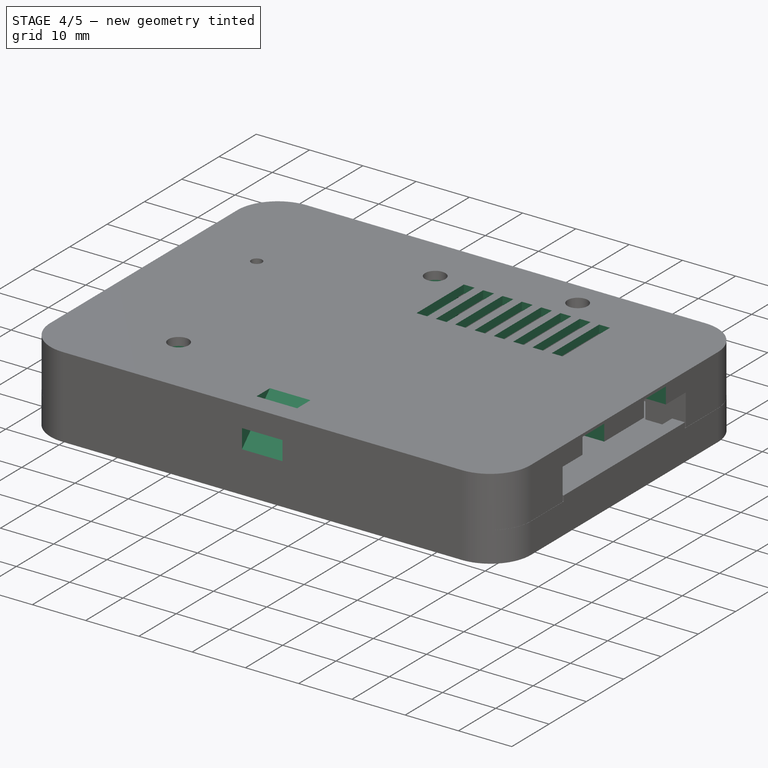
[diagram: stage 4 of 5 — iso view after this stage's code; geometry added in this stage tinted green]
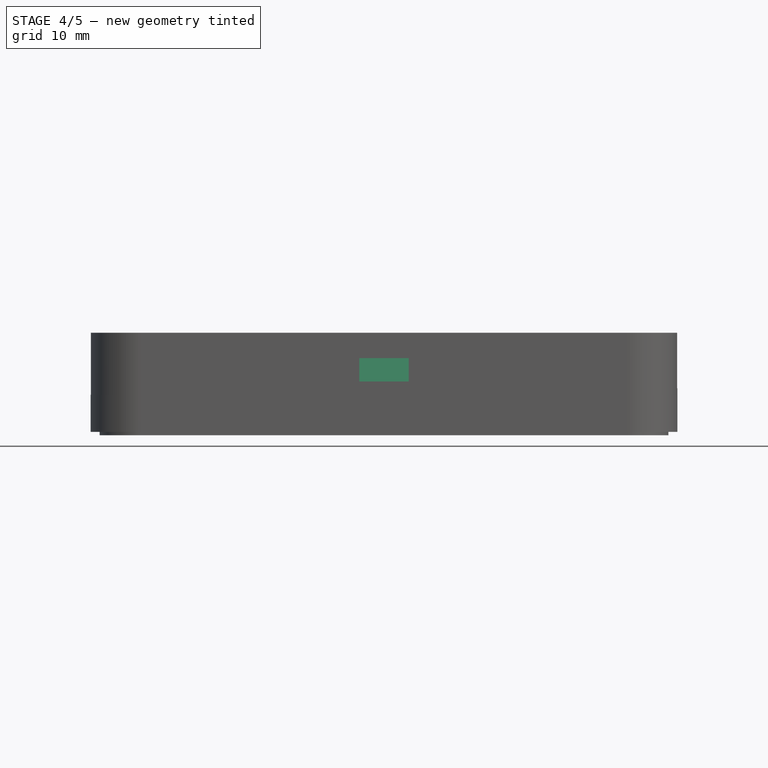
[diagram: stage 4 of 5 — front view after this stage's code; geometry added in this stage tinted green]
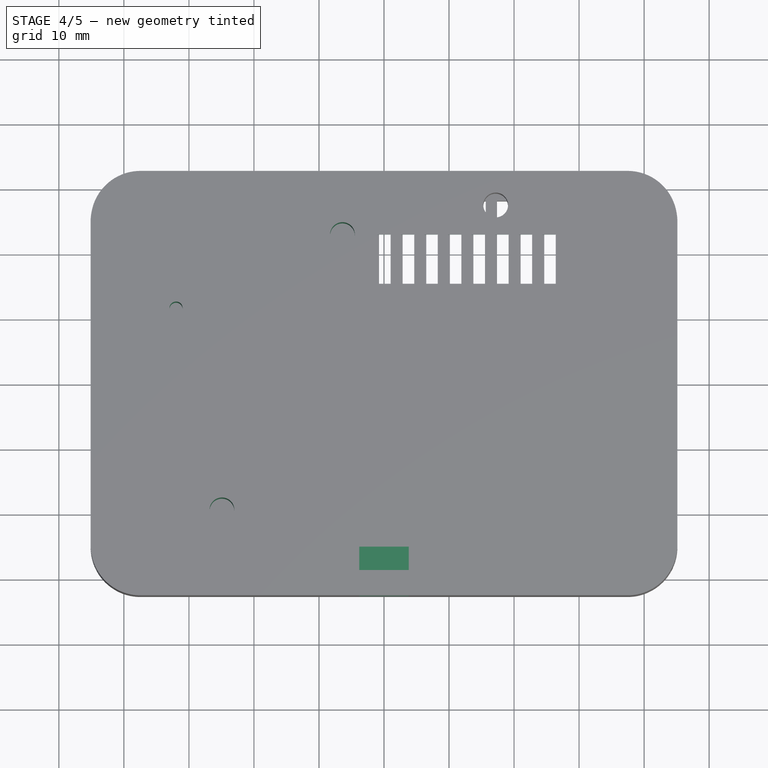
[diagram: stage 4 of 5 — top view after this stage's code; geometry added in this stage tinted green]
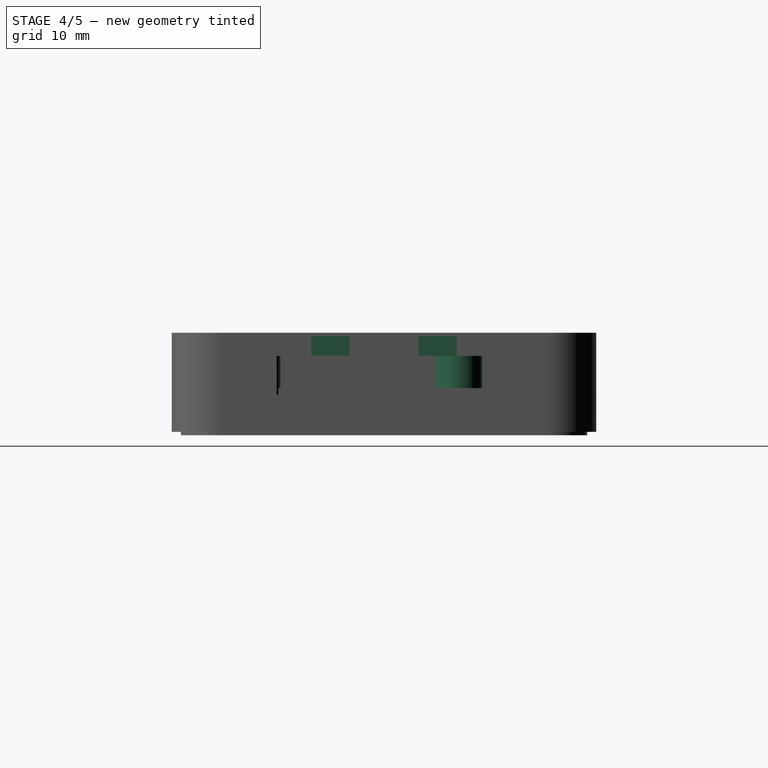
[diagram: stage 4 of 5 — right view after this stage's code; geometry added in this stage tinted green]
FEATURE [Sketcher::SketchObject] Sketch012
  ArcFitTolerance = 1e-06
  AttachmentSupport = -> [Pocket007]
  ExternalGeometry = -> [Pocket007]
  FullyConstrained = true
  MakeInternals = false
  MapMode = 5
  Placement = pos=(0,0,13.716) rot=(1,0,0;3.14159rad)
  sketch-geometry (6):
    g0: Circle CenterX=-31.9773 CenterY=-11.5418 CenterZ=0 NormalX=0 NormalY=0 NormalZ=1 AngleXU=0 Radius=3.556
    g1: Circle CenterX=-31.9773 CenterY=-11.5418 CenterZ=0 NormalX=0 NormalY=0 NormalZ=1 AngleXU=0 Radius=1.016
    g2: Circle CenterX=-24.921 CenterY=19.4844 CenterZ=0 NormalX=0 NormalY=0 NormalZ=1 AngleXU=0 Radius=1.905
    g3: Circle CenterX=-24.921 CenterY=19.4844 CenterZ=0 NormalX=0 NormalY=0 NormalZ=1 AngleXU=0 Radius=3.556
    g4: Circle CenterX=-6.38982 CenterY=-22.8588 CenterZ=0 NormalX=0 NormalY=0 NormalZ=1 AngleXU=0 Radius=1.905
    g5: Circle CenterX=-6.38982 CenterY=-22.8588 CenterZ=0 NormalX=0 NormalY=0 NormalZ=1 AngleXU=0 Radius=3.556
  constraints (12):
    c: Coincident(g0,g-3)
    c: Coincident(g1,g0)
    c: Equal(g-3,g1)
    c: Diameter(g0) = 7.112
    c: Coincident(g2,g-4)
    c: Coincident(g3,g2)
    c: Coincident(g4,g-5)
    c: Coincident(g5,g4)
    c: Equal(g4,g-5)
    c: Equal(g-4,g2)
    c: Equal(g5,g3)
    c: Equal(g3,g0)
FEATURE [PartDesign::Pad] Pad004
  BaseFeature = -> Pocket007
  Direction = (0,0,-1)
  Length = 10.16
  Length2 = 10
  Profile = -> Sketch012
  ReferenceAxis = -> Sketch012 [N_Axis]
  Suppressed = false
  Type = 0
FEATURE [Sketcher::SketchObject] Sketch013
  ArcFitTolerance = 1e-06
  AttachmentSupport = -> [Pad004]
  FullyConstrained = true
  MakeInternals = false
  MapMode = 5
  Placement = pos=(0,0,15.24) rot=(0,0,1;0rad)
  sketch-geometry (4):
    g0: LineSegment StartX=-1.016 StartY=22.86 StartZ=0 EndX=-1.016 EndY=10.16 EndZ=0
    g1: LineSegment StartX=-1.016 StartY=10.16 StartZ=0 EndX=1.016 EndY=10.16 EndZ=0
    g2: LineSegment StartX=1.016 StartY=10.16 StartZ=0 EndX=1.016 EndY=22.86 EndZ=0
    g3: LineSegment StartX=1.016 StartY=22.86 StartZ=0 EndX=-1.016 EndY=22.86 EndZ=0
  constraints (11):
    c: Coincident(g0,g1)
    c: Coincident(g1,g2)
    c: Coincident(g2,g3)
    c: Coincident(g3,g0)
    c: Vertical(g0)
    c: Vertical(g2)
    c: Horizontal(g3)
    c: Symmetric(g0,g1,g-2)
    c: DistanceY(g2,g2) = 12.7
    c: Distance(g1,g1) = 2.032
    c: DistanceY(g-1,g0) = 10.16
FEATURE [PartDesign::Pocket] Pocket008
  BaseFeature = -> Pad004
  Direction = (0,0,-1)
  Length = 5
  Length2 = 5
  Profile = -> Sketch013
  ReferenceAxis = -> Sketch013 [N_Axis]
  Suppressed = false
  Type = 1
FEATURE [PartDesign::LinearPattern] LinearPattern001
  BaseFeature = -> Pocket008
  Direction = -> Sketch013 [H_Axis]
  Length = 25.4
  Mode = 0
  Occurrences = 8
  Offset = 3.62857
  Originals = -> [Pocket008]
  Suppressed = false
  TransformMode = 0
FEATURE [Sketcher::SketchObject] Sketch014
  ArcFitTolerance = 1e-06
  AttachmentSupport = -> [LinearPattern001]
  ExternalGeometry = -> [LinearPattern001]
  FullyConstrained = true
  MakeInternals = false
  MapMode = 5
  Placement = pos=(45.085,0,0) rot=(0.57735,0.57735,0.57735;2.0944rad)
  sketch-geometry (9):
    g0: LineSegment StartX=5.334 StartY=14.732 StartZ=0 EndX=5.334 EndY=11.684 EndZ=0
    g1: LineSegment StartX=11.176 StartY=11.684 StartZ=0 EndX=11.176 EndY=14.732 EndZ=0
    g2: LineSegment StartX=11.176 StartY=14.732 StartZ=0 EndX=5.334 EndY=14.732 EndZ=0
    g3: LineSegment StartX=0 StartY=0 StartZ=0 EndX=0 EndY=11.684 EndZ=0
    g4: LineSegment StartX=0 StartY=11.684 StartZ=0 EndX=5.334 EndY=11.684 EndZ=0
    g5: LineSegment StartX=11.176 StartY=11.684 StartZ=0 EndX=16.51 EndY=11.684 EndZ=0
    g6: LineSegment StartX=16.51 StartY=11.684 StartZ=0 EndX=16.51 EndY=-2.032 EndZ=0
    g7: LineSegment StartX=16.51 StartY=-2.032 StartZ=0 EndX=0 EndY=-2.032 EndZ=0
    g8: LineSegment StartX=0 StartY=-2.032 StartZ=0 EndX=0 EndY=0 EndZ=0
  constraints (25):
    c: Coincident(g1,g2)
    c: Coincident(g2,g0)
    c: Vertical(g0)
    c: Vertical(g1)
    c: Horizontal(g2)
    c: DistanceX(g2,g2) = 5.842
    c: Coincident(g3,g-1)
    c: PointOnObject(g3,g-2)
    c: Coincident(g4,g3)
    c: Coincident(g4,g0)
    c: Horizontal(g4)
    c: Coincident(g5,g1)
    c: Horizontal(g5)
    c: Coincident(g6,g5)
    c: Vertical(g6)
    c: Coincident(g7,g6)
    c: PointOnObject(g7,g-2)
    c: Horizontal(g7)
    c: Coincident(g8,g7)
    c: Coincident(g8,g3)
    c: DistanceY(g8,g8) = 2.032
    c: Coincident(g5,g-3)
    c: PointOnObject(g0,g-3)
    c: Equal(g5,g4)
    c: DistanceY(g0,g0) = 3.048
FEATURE [PartDesign::Pocket] Pocket009
  BaseFeature = -> LinearPattern001
  Direction = (-1,0,0)
  Length = 5.08
  Length2 = 5
  Profile = -> Sketch014
  ReferenceAxis = -> Sketch014 [N_Axis]
  Suppressed = false
  Type = 0
FEATURE [PartDesign::Mirrored] Mirrored004
  BaseFeature = -> Pocket009
  MirrorPlane = -> Sketch014 [V_Axis]
  Originals = -> [Pocket009]
  Suppressed = false
  TransformMode = 0
FEATURE [Sketcher::SketchObject] Sketch015
  ArcFitTolerance = 1e-06
  AttachmentSupport = -> [YZ_Plane002]
  FullyConstrained = true
  MakeInternals = false
  MapMode = 5
  Placement = pos=(0,0,0) rot=(0.57735,0.57735,0.57735;2.0944rad)
  sketch-geometry (4):
    g0: LineSegment StartX=0 StartY=40.386 StartZ=0 EndX=-40.386 EndY=0 EndZ=0
    g1: LineSegment StartX=-40.386 StartY=0 StartZ=0 EndX=-40.386 EndY=3.5921 EndZ=0
    g2: LineSegment StartX=-40.386 StartY=3.5921 StartZ=0 EndX=-3.5921 EndY=40.386 EndZ=0
    g3: LineSegment StartX=-3.5921 StartY=40.386 StartZ=0 EndX=0 EndY=40.386 EndZ=0
  constraints (12):
    c: Coincident(g1,g0)
    c: Vertical(g1)
    c: Coincident(g2,g1)
    c: Coincident(g3,g2)
    c: Coincident(g3,g0)
    c: Horizontal(g3)
    c: Angle(g-1,g0) = 0.785398
    c: Parallel(g2,g0)
    c: Distance(g2,g0) = 2.54
    c: PointOnObject(g0,g-1)
    c: PointOnObject(g0,g-2)
    c: DistanceX(g0,g-1) = 40.386
FEATURE [PartDesign::Pocket] Pocket010
  BaseFeature = -> Mirrored004
  Direction = (-1,0,0)
  Length = 7.62
  Length2 = 5
  Midplane = true
  Profile = -> Sketch015
  ReferenceAxis = -> Sketch015 [N_Axis]
  Suppressed = false
  Type = 0
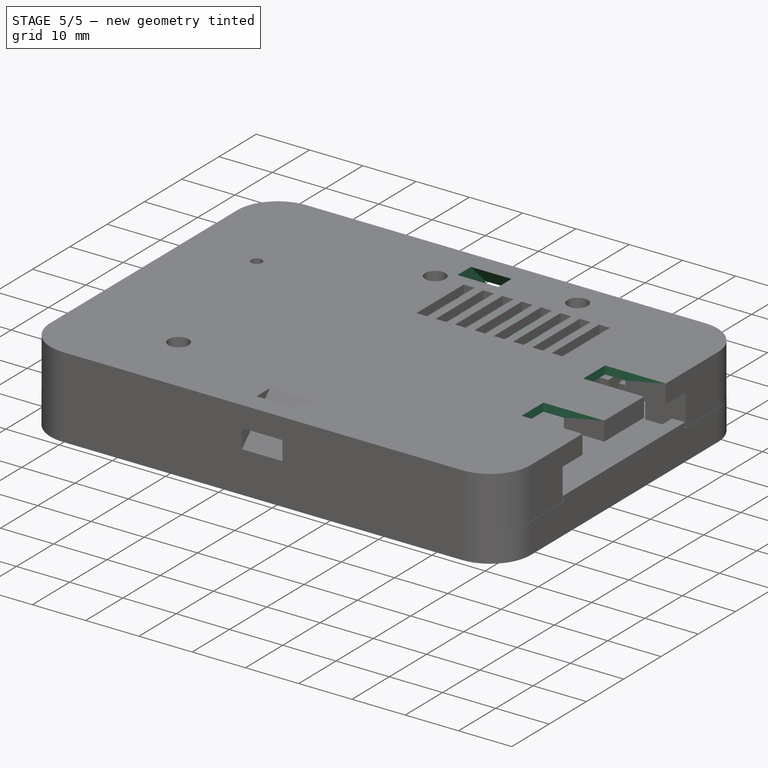
[diagram: stage 5 of 5 — iso view after this stage's code; geometry added in this stage tinted green]
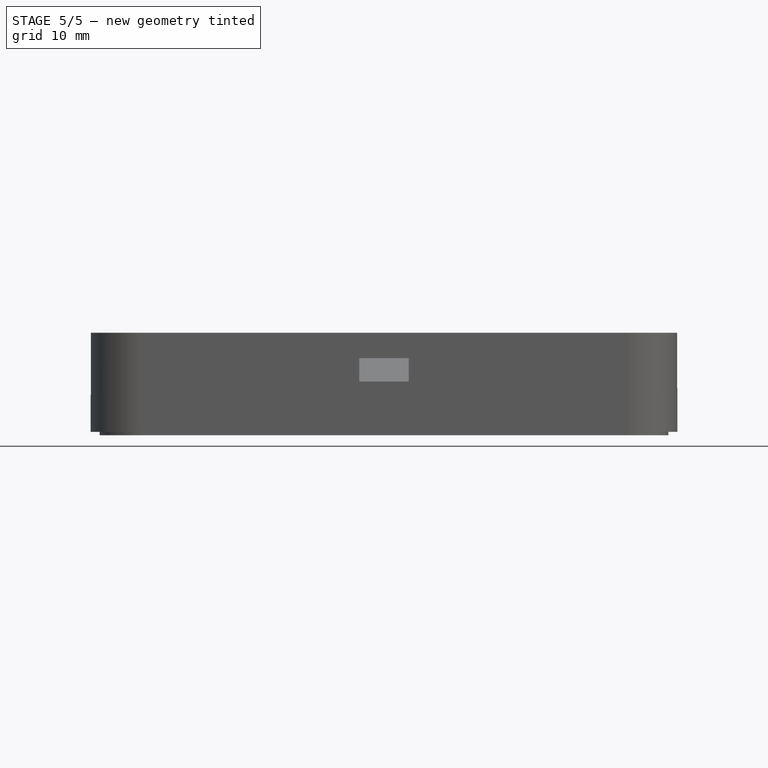
[diagram: stage 5 of 5 — front view after this stage's code; geometry added in this stage tinted green]
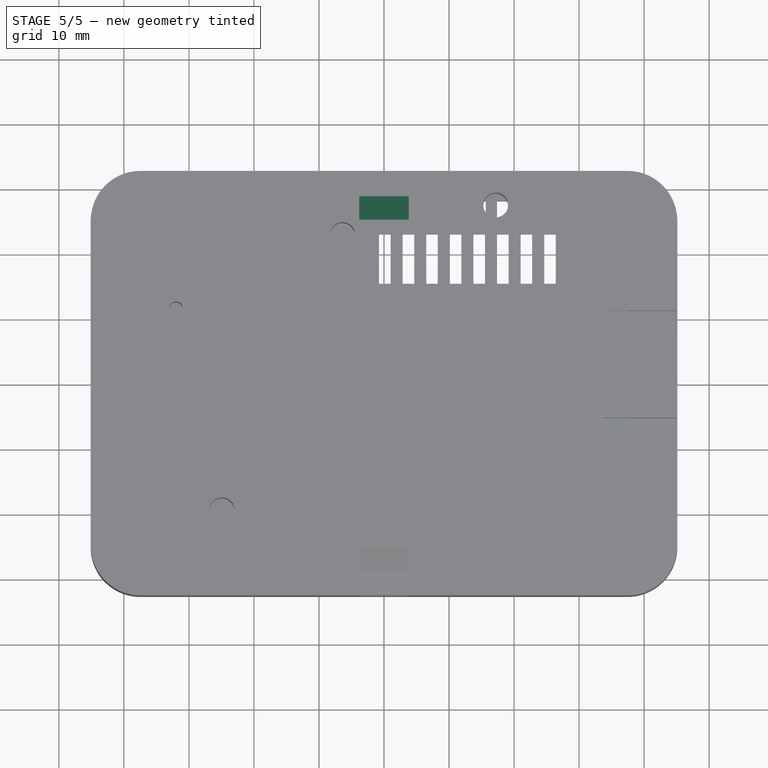
[diagram: stage 5 of 5 — top view after this stage's code; geometry added in this stage tinted green]
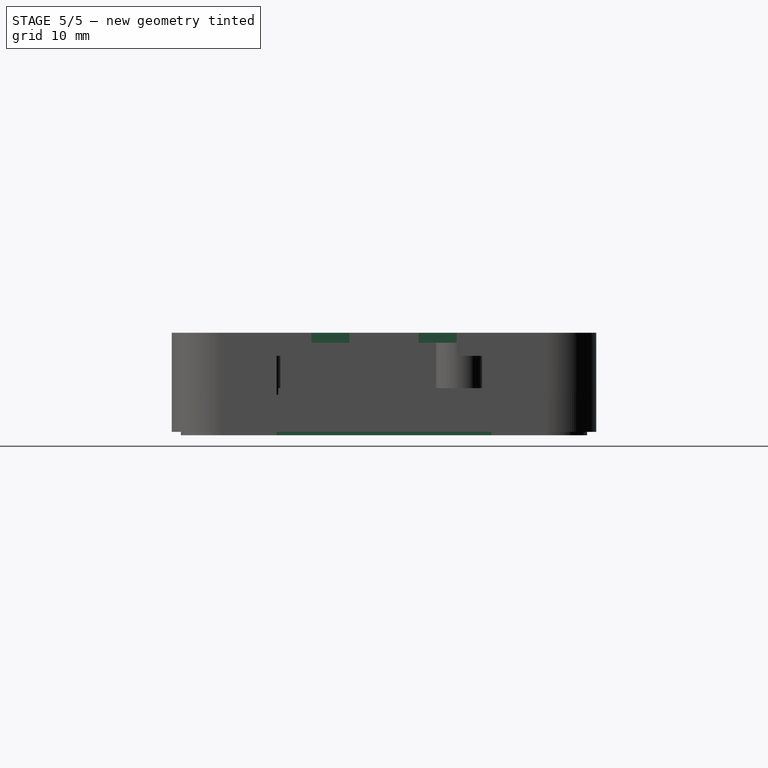
[diagram: stage 5 of 5 — right view after this stage's code; geometry added in this stage tinted green]
FEATURE [PartDesign::Mirrored] Mirrored005
  BaseFeature = -> Pocket010
  MirrorPlane = -> XZ_Plane002
  Originals = -> [Pocket010]
  Suppressed = false
  TransformMode = 0
FEATURE [Sketcher::SketchObject] Sketch016
  ArcFitTolerance = 1e-06
  AttachmentSupport = -> [Mirrored005]
  FullyConstrained = false
  MakeInternals = false
  MapMode = 5
  Placement = pos=(0,0,0) rot=(1,0,0;3.14159rad)
  sketch-geometry (5):
    g0: LineSegment StartX=31.493 StartY=-29.1373 StartZ=0 EndX=31.493 EndY=-19.2447 EndZ=0
    g1: LineSegment StartX=31.493 StartY=-19.2447 StartZ=0 EndX=22.6445 EndY=-19.2447 EndZ=0
    g2: LineSegment StartX=22.6445 StartY=-19.2447 StartZ=0 EndX=22.6445 EndY=-29.1373 EndZ=0
    g3: LineSegment StartX=22.6445 StartY=-29.1373 StartZ=0 EndX=31.493 EndY=-29.1373 EndZ=0
    g4: Circle CenterX=8.49134 CenterY=-25.9429 CenterZ=0 NormalX=0 NormalY=0 NormalZ=1 AngleXU=0 Radius=3.16885
  constraints (8):
    c: Coincident(g0,g1)
    c: Coincident(g1,g2)
    c: Coincident(g2,g3)
    c: Coincident(g3,g0)
    c: Vertical(g0)
    c: Vertical(g2)
    c: Horizontal(g1)
    c: Horizontal(g3)
FEATURE [PartDesign::Pocket] Pocket011
  BaseFeature = -> Mirrored005
  Direction = (0,0,1)
  Length = 0
  Length2 = 5
  Profile = -> Sketch016
  ReferenceAxis = -> Sketch016 [N_Axis]
  Suppressed = false
  Type = 3
  UpToFace = -> Mirrored005 [Face86]
FEATURE [Sketcher::SketchObject] Sketch017
  ArcFitTolerance = 1e-06
  AttachmentSupport = -> [Pocket011]
  ExternalGeometry = -> [Pocket011]
  FullyConstrained = true
  MakeInternals = false
  MapMode = 5
  Placement = pos=(0,0,0) rot=(1,0,0;3.14159rad)
  sketch-geometry (14):
    g0: LineSegment StartX=-37.5 StartY=-30.48 StartZ=0 EndX=37.5 EndY=-30.48 EndZ=0
    g1: LineSegment StartX=42.98 StartY=-25 StartZ=0 EndX=42.98 EndY=25 EndZ=0
    g2: LineSegment StartX=37.5 StartY=30.48 StartZ=0 EndX=-37.5 EndY=30.48 EndZ=0
    g3: LineSegment StartX=-42.98 StartY=25 StartZ=0 EndX=-42.98 EndY=-25 EndZ=0
    g4: ArcOfCircle CenterX=-37.5 CenterY=-25 CenterZ=0 NormalX=0 NormalY=0 NormalZ=1 AngleXU=0 Radius=5.48 StartAngle=3.14159 EndAngle=4.71239
    g5: ArcOfCircle CenterX=37.5 CenterY=-25 CenterZ=0 NormalX=0 NormalY=0 NormalZ=1 AngleXU=0 Radius=5.48 StartAngle=4.71239 EndAngle=6.28319
    g6: ArcOfCircle CenterX=37.5 CenterY=25 CenterZ=0 NormalX=0 NormalY=0 NormalZ=1 AngleXU=0 Radius=5.48 StartAngle=0 EndAngle=1.5708
    g7: ArcOfCircle CenterX=-37.5 CenterY=25 CenterZ=0 NormalX=0 NormalY=0 NormalZ=1 AngleXU=0 Radius=5.48 StartAngle=1.5708 EndAngle=3.14159
    g8: GeomPoint [constr] X=-42.98 Y=-30.48 Z=0
    g9: GeomPoint [constr] X=42.98 Y=30.48 Z=0
    g10: Circle CenterX=37.5 CenterY=-25 CenterZ=0 NormalX=0 NormalY=0 NormalZ=1 AngleXU=0 Radius=3.175
    g11: Circle CenterX=37.5 CenterY=25 CenterZ=0 NormalX=0 NormalY=0 NormalZ=1 AngleXU=0 Radius=3.175
    g12: Circle CenterX=-37.5 CenterY=25 CenterZ=0 NormalX=0 NormalY=0 NormalZ=1 AngleXU=0 Radius=3.175
    g13: Circle CenterX=-37.5 CenterY=-25 CenterZ=0 NormalX=0 NormalY=0 NormalZ=1 AngleXU=0 Radius=3.175
  constraints (29):
    c: Tangent(g0,g4) = -1.5708
    c: Tangent(g0,g5) = -1.5708
    c: Tangent(g1,g5) = -1.5708
    c: Tangent(g1,g6) = -1.5708
    c: Tangent(g2,g6) = -1.5708
    c: Tangent(g2,g7) = -1.5708
    c: Tangent(g3,g7) = -1.5708
    c: Tangent(g3,g4) = -1.5708
    c: Horizontal(g0)
    c: Horizontal(g2)
    c: Vertical(g3)
    c: Equal(g4,g5)
    c: Equal(g5,g6)
    c: Equal(g6,g7)
    c: PointOnObject(g8,g0)
    c: PointOnObject(g8,g3)
    c: PointOnObject(g9,g1)
    c: PointOnObject(g9,g2)
    c: Coincident(g6,g-3)
    c: Coincident(g4,g-4)
    c: Coincident(g1,g-3)
    c: Coincident(g10,g5)
    c: Coincident(g11,g6)
    c: Coincident(g12,g7)
    c: Coincident(g13,g4)
    c: Equal(g10,g13)
    c: Equal(g13,g12)
    c: Equal(g12,g11)
    c: Diameter(g10) = 6.35
FEATURE [PartDesign::Pocket] Pocket012
  BaseFeature = -> Pocket011
  Direction = (0,0,1)
  Length = 5.08
  Length2 = 5
  Profile = -> Sketch017
  ReferenceAxis = -> Sketch017 [N_Axis]
  Suppressed = false
  Type = 0
FEATURE [Sketcher::SketchObject] Sketch018
  ArcFitTolerance = 1e-06
  AttachmentSupport = -> [Pocket012]
  ExternalGeometry = -> [Pocket012]
  FullyConstrained = true
  MakeInternals = false
  MapMode = 5
  Placement = pos=(0,0,0) rot=(1,0,0;3.14159rad)
  sketch-geometry (4):
    g0: Circle CenterX=-37.5 CenterY=25 CenterZ=0 NormalX=0 NormalY=0 NormalZ=1 AngleXU=0 Radius=4.445
    g1: Circle CenterX=37.5 CenterY=25 CenterZ=0 NormalX=0 NormalY=0 NormalZ=1 AngleXU=0 Radius=4.445
    g2: Circle CenterX=37.5 CenterY=-25 CenterZ=0 NormalX=0 NormalY=0 NormalZ=1 AngleXU=0 Radius=4.445
    g3: Circle CenterX=-37.5 CenterY=-25 CenterZ=0 NormalX=0 NormalY=0 NormalZ=1 AngleXU=0 Radius=4.445
  constraints (8):
    c: Coincident(g0,g-4)
    c: Coincident(g1,g-3)
    c: Coincident(g2,g-6)
    c: Coincident(g3,g-5)
    c: Equal(g3,g0)
    c: Equal(g0,g1)
    c: Equal(g1,g2)
    c: Diameter(g2) = 8.89
FEATURE [PartDesign::Pocket] Pocket013
  BaseFeature = -> Pocket012
  Direction = (0,0,1)
  Length = 0.9652
  Length2 = 5
  Profile = -> Sketch018
  ReferenceAxis = -> Sketch018 [N_Axis]
  Suppressed = false
  Type = 0
FEATURE [Sketcher::SketchObject] Sketch019
  ArcFitTolerance = 1e-06
  AttachmentSupport = -> [Pocket013]
  ExternalGeometry = -> [Pocket013]
  FullyConstrained = true
  MakeInternals = false
  MapMode = 5
  Placement = pos=(45.085,0,0) rot=(0.57735,0.57735,0.57735;2.0944rad)
  sketch-geometry (4):
    g0: LineSegment StartX=11.176 StartY=11.684 StartZ=0 EndX=11.176 EndY=16.764 EndZ=0
    g1: LineSegment StartX=11.176 StartY=16.764 StartZ=0 EndX=5.334 EndY=16.764 EndZ=0
    g2: LineSegment StartX=5.334 StartY=16.764 StartZ=0 EndX=5.334 EndY=11.684 EndZ=0
    g3: LineSegment StartX=5.334 StartY=11.684 StartZ=0 EndX=11.176 EndY=11.684 EndZ=0
  constraints (10):
    c: Coincident(g0,g1)
    c: Coincident(g1,g2)
    c: Coincident(g2,g3)
    c: Coincident(g3,g0)
    c: Vertical(g0)
    c: Vertical(g2)
    c: Horizontal(g1)
    c: Coincident(g0,g-3)
    c: Coincident(g-4,g2)
    c: DistanceY(g2,g2) = 5.08
FEATURE [PartDesign::Pocket] Pocket014
  BaseFeature = -> Pocket013
  Direction = (-1,0,0)
  Length = 11.43
  Length2 = 5
  Profile = -> Sketch019
  ReferenceAxis = -> Sketch019 [N_Axis]
  Suppressed = false
  Type = 0
FEATURE [PartDesign::Mirrored] Mirrored006
  BaseFeature = -> Pocket014
  MirrorPlane = -> Sketch019 [V_Axis]
  Originals = -> [Pocket014]
  Refine = true
  Suppressed = false
  TransformMode = 0
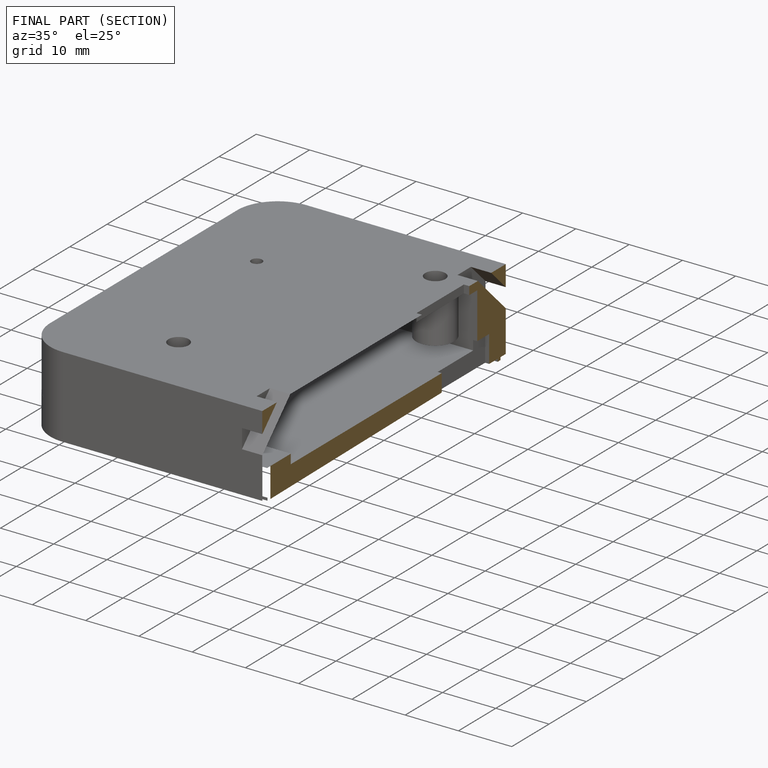
[diagram: finished part — half-section view (interior)]
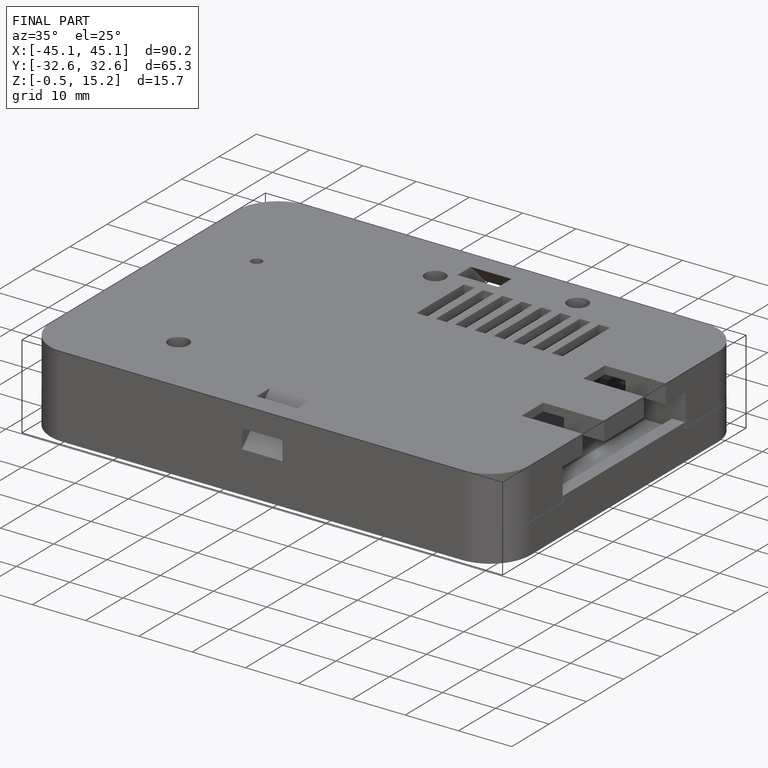
[diagram: finished part — iso view with bounding-box wireframe]
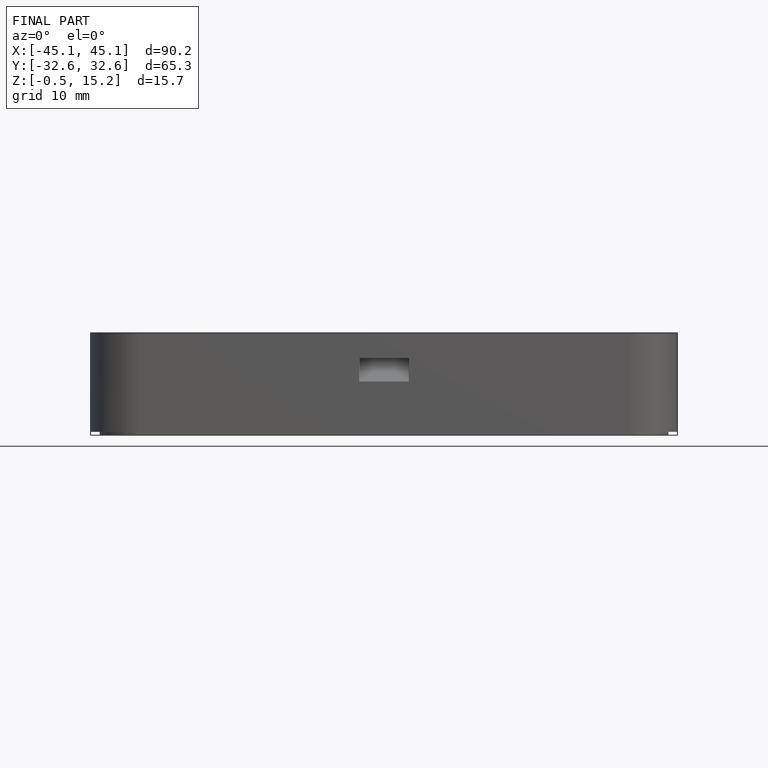
[diagram: finished part — front view with bounding-box wireframe]
